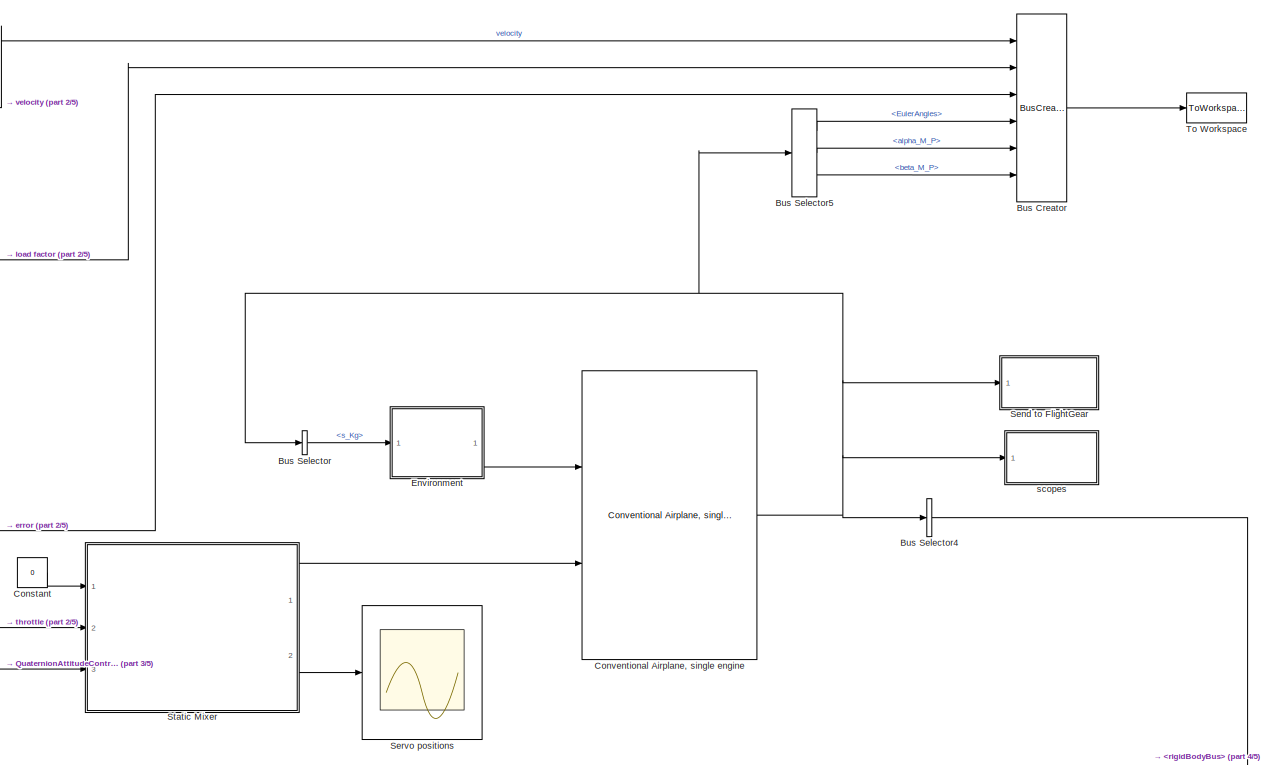
[diagram: root canvas - part 1/5, top right region]
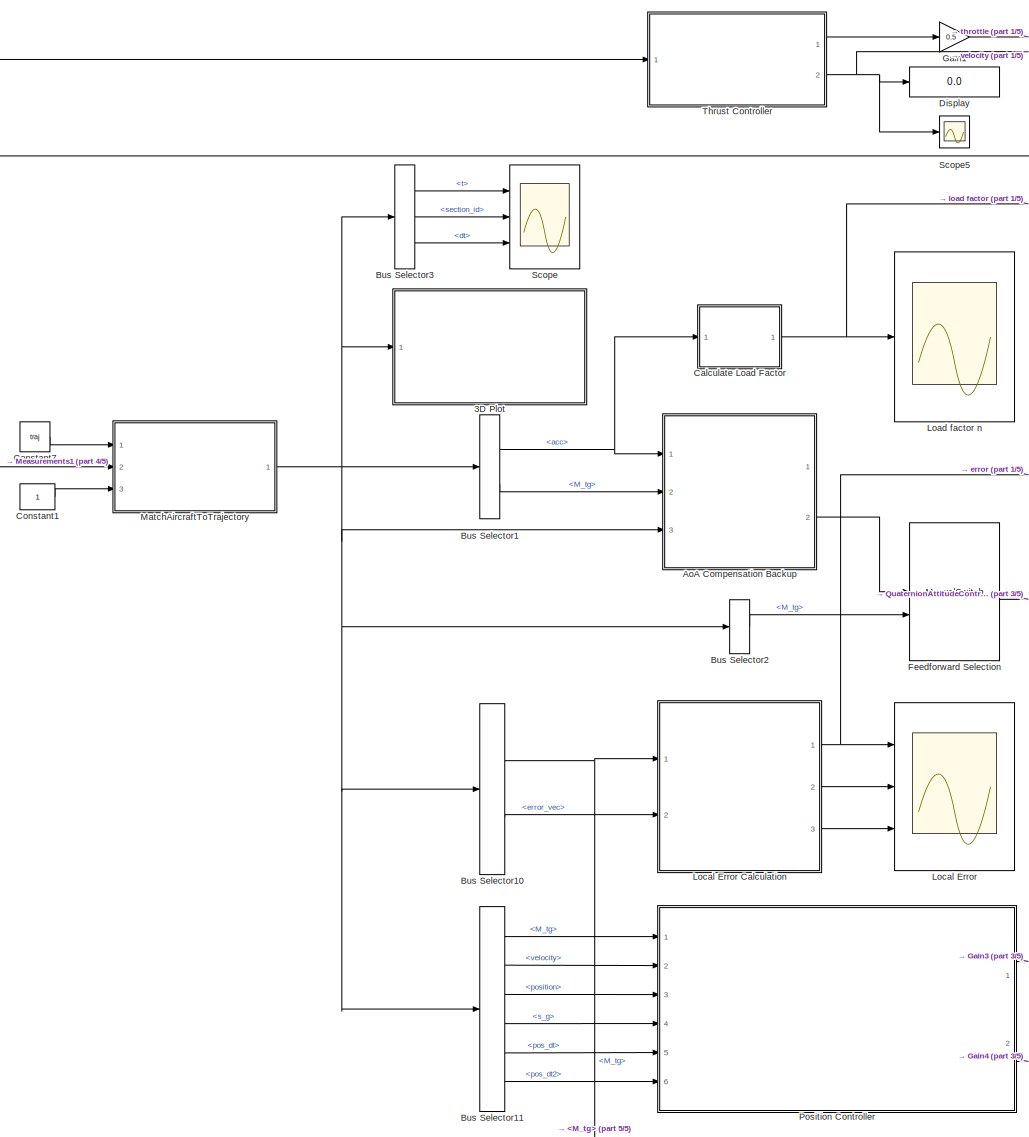
[diagram: root canvas - part 2/5, left side, full height]
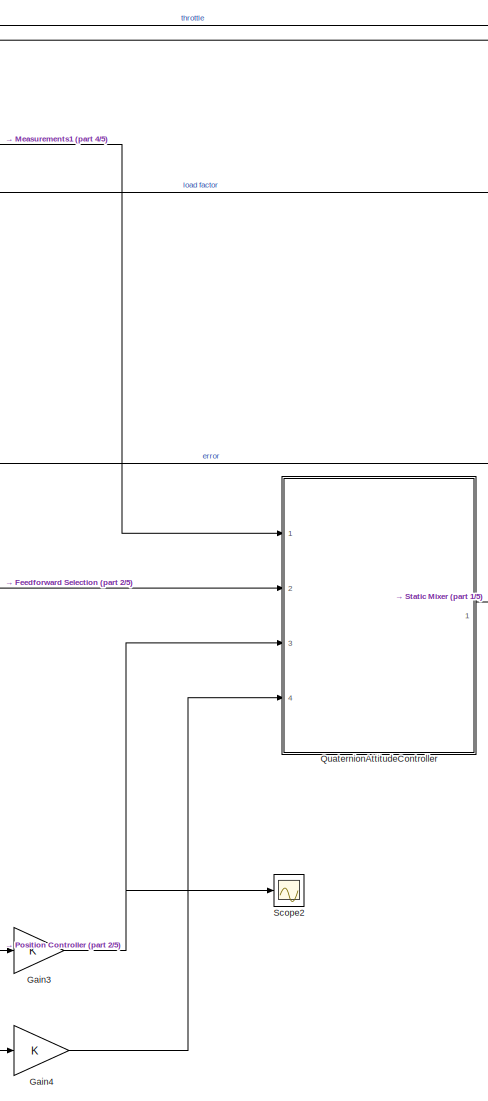
[diagram: root canvas - part 3/5, central region]
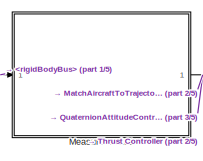
[diagram: root canvas - part 4/5, middle left region]
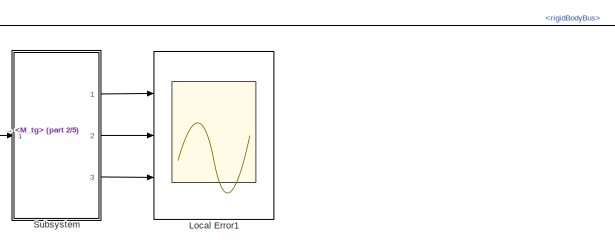
[diagram: root canvas - part 5/5, bottom center region]
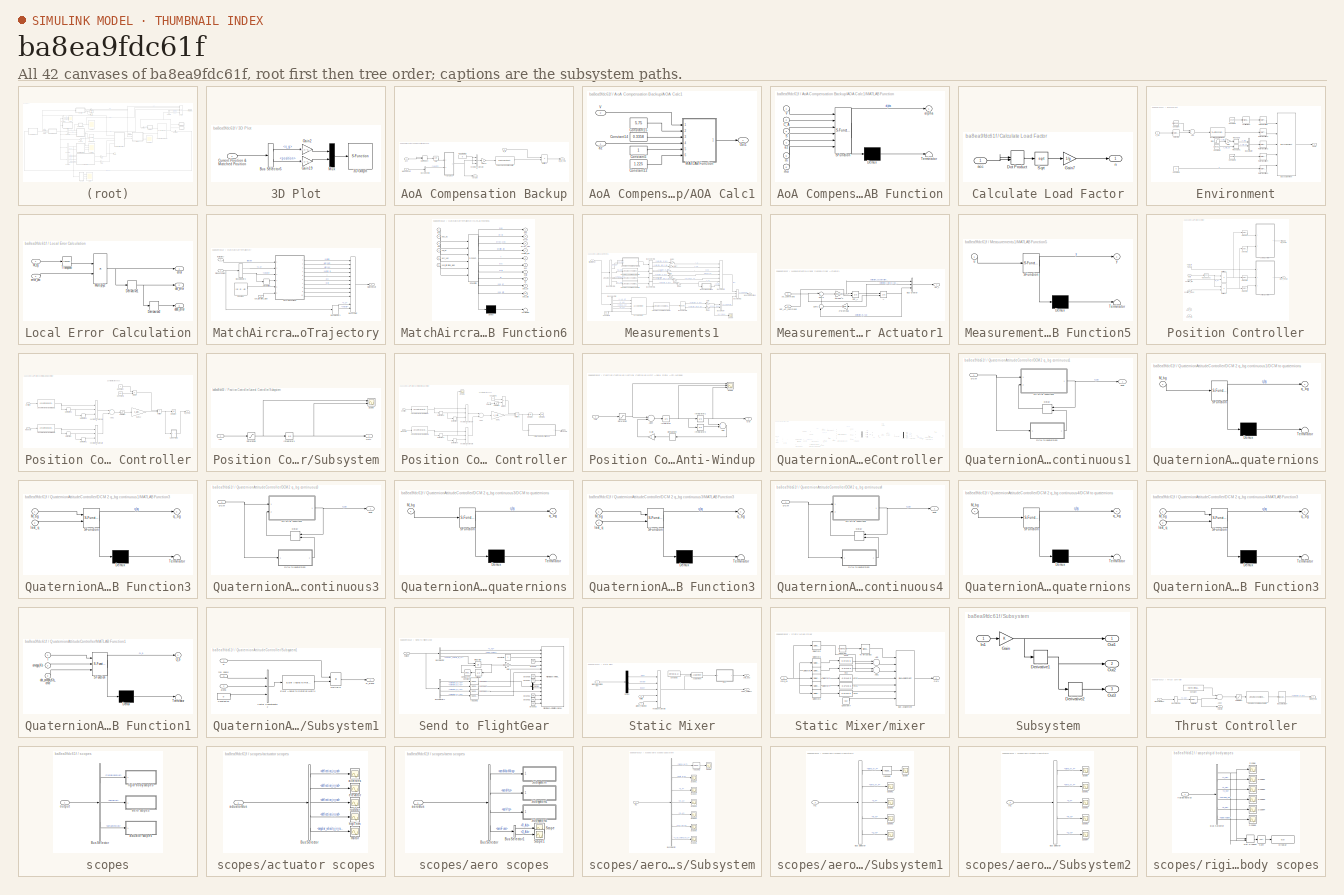
[diagram: thumbnail index - all 42 canvases of the model, root first then tree order]
MODEL slx_ba8ea9fdc61f
KIND model
CONFIG AbsTol = auto
CONFIG EnableMultiTasking = off
CONFIG FixedStep = 0.001
CONFIG MaxStep = auto
CONFIG MinStep = auto
CONFIG RelTol = 1e-3
CONFIG SampleTimeConstraint = Unconstrained
CONFIG Solver = ode4
CONFIG SolverName = ode4
CONFIG StartTime = 0.0
CONFIG StopTime = 30
BLOCK [SubSystem] 3D Plot
  Ports = [1]
  RequestExecContextInheritance = off
BLOCK [S-Function] 3D Plot/3D Graph
  CopyFcn = if exist('sfun3d','file'), sfun3d([],[],[],'CopyBlock'); end
  DeleteFcn = if exist('sfun3d','file'), sfun3d([],[],[],'DeleteBlock'); end
  EnableBusSupport = off
  FunctionName = sfun3d
  LoadFcn = if exist('sfun3d','file'), sfun3d([],[],[],'LoadBlock'); end
  NameChangeFcn = if exist('sfun3d','file'), sfun3d([],[],[],'NameChange'); end
  Parameters = ax,T,np,cp,gd,ls,mk,mx,hd,tb
  Ports = [1]
  SFcnIsStateOwnerBlock = off
  SFunctionDeploymentMode = off
BLOCK [BusSelector] 3D Plot/Bus Selector5
  OutputAsBus = off
  OutputSignals = s_g,position
  Ports = [1, 2]
BLOCK [Inport] 3D Plot/Current Position & Matched Position
  IconDisplay = Port number
BLOCK [Gain] 3D Plot/Gain19
  Gain = [1 1 -1]'
  OutDataTypeStr = Inherit: Inherit via internal rule
  ParamDataTypeStr = Inherit: Inherit via internal rule
  SaturateOnIntegerOverflow = off
BLOCK [Gain] 3D Plot/Gain2
  Gain = [1 1 -1]'
  OutDataTypeStr = Inherit: Inherit via internal rule
  ParamDataTypeStr = Inherit: Inherit via internal rule
  SaturateOnIntegerOverflow = off
BLOCK [Mux] 3D Plot/Mux
  DisplayOption = bar
  Inputs = 2
  Ports = [2, 1]
BLOCK [SubSystem] AoA Compensation Backup
  Ports = [3, 2]
  RequestExecContextInheritance = off
BLOCK [SubSystem] AoA Compensation Backup/AOA Calc1
  Ports = [2, 1]
  RequestExecContextInheritance = off
BLOCK [Constant] AoA Compensation Backup/AOA Calc1/Constant12
  Value = 1.225
BLOCK [Constant] AoA Compensation Backup/AOA Calc1/Constant14
  Value = 0.3358
BLOCK [Constant] AoA Compensation Backup/AOA Calc1/Constant15
  Value = 5.75
BLOCK [Constant] AoA Compensation Backup/AOA Calc1/Constant5
BLOCK [SubSystem] AoA Compensation Backup/AOA Calc1/MATLAB Function
  ErrorFcn = Stateflow.Translate.translate
  PermitHierarchicalResolution = ExplicitOnly
  Ports = [6, 1]
  RequestExecContextInheritance = off
  SFBlockType = MATLAB Function
  TreatAsAtomicUnit = on
BLOCK [Demux] AoA Compensation Backup/AOA Calc1/MATLAB Function/ Demux 
  Outputs = 1
  Ports = [1, 1]
BLOCK [S-Function] AoA Compensation Backup/AOA Calc1/MATLAB Function/ SFunction 
  EnableBusSupport = on
  FunctionName = sf_sfun
  PortCounts = [6 2]
  Ports = [6, 2]
  SFcnIsStateOwnerBlock = off
  SFunctionDeploymentMode = off
  Tag = Stateflow S-Function AirplaneSimModel_AutomaticTrajectory 13
BLOCK [Terminator] AoA Compensation Backup/AOA Calc1/MATLAB Function/ Terminator 
BLOCK [Inport] AoA Compensation Backup/AOA Calc1/MATLAB Function/C_A
  IconDisplay = Port number
  Port = 2
BLOCK [Inport] AoA Compensation Backup/AOA Calc1/MATLAB Function/S
  IconDisplay = Port number
  Port = 3
BLOCK [Inport] AoA Compensation Backup/AOA Calc1/MATLAB Function/V
  IconDisplay = Port number
BLOCK [Outport] AoA Compensation Backup/AOA Calc1/MATLAB Function/alpha
  IconDisplay = Port number
BLOCK [Inport] AoA Compensation Backup/AOA Calc1/MATLAB Function/az
  IconDisplay = Port number
  Port = 4
BLOCK [Inport] AoA Compensation Backup/AOA Calc1/MATLAB Function/m
  IconDisplay = Port number
  Port = 5
BLOCK [Inport] AoA Compensation Backup/AOA Calc1/MATLAB Function/rho
  IconDisplay = Port number
  Port = 6
BLOCK [Outport] AoA Compensation Backup/AOA Calc1/Out1
  IconDisplay = Port number
BLOCK [Inport] AoA Compensation Backup/AOA Calc1/V
  IconDisplay = Port number
  Port = 2
BLOCK [Inport] AoA Compensation Backup/AOA Calc1/az
  IconDisplay = Port number
BLOCK [Outport] AoA Compensation Backup/AoA Soll
  IconDisplay = Port number
BLOCK [BusSelector] AoA Compensation Backup/Bus Selector3
  OutputAsBus = off
  OutputSignals = velocity
  Ports = [1, 1]
BLOCK [Constant] AoA Compensation Backup/Constant16
  Value = 0
BLOCK [DotProduct] AoA Compensation Backup/Dot Product
  OutDataTypeStr = Inherit: Inherit via internal rule
BLOCK [Reference] AoA Compensation Backup/Euler Angles to Rotation Matrix  REF=axes_transformation_lib/Euler Angles to Rotation Matrix  (lib defined in slx_69e2413c78c0)
  Ports = [1, 1]
  SourceBlock = axes_transformation_lib/Euler Angles to Rotation Matrix
  SourceProductName = LADAC
  SourceType = SubSystem
BLOCK [Gain] AoA Compensation Backup/Gain15
  Gain = -1
  OutDataTypeStr = Inherit: Inherit via internal rule
  ParamDataTypeStr = Inherit: Inherit via internal rule
  SaturateOnIntegerOverflow = off
BLOCK [Inport] AoA Compensation Backup/M_tg
  IconDisplay = Port number
  Port = 2
BLOCK [Outport] AoA Compensation Backup/M_tg_cmd
  IconDisplay = Port number
  Port = 2
BLOCK [Inport] AoA Compensation Backup/MatchResult
  IconDisplay = Port number
  Port = 3
BLOCK [Product] AoA Compensation Backup/Multiply1
  InputSameDT = off
  Multiplication = Matrix(*)
  OutDataTypeStr = Inherit: Inherit via internal rule
  Ports = [2, 1]
  RndMeth = Floor
  SaturateOnIntegerOverflow = off
BLOCK [Sqrt] AoA Compensation Backup/Sqrt
BLOCK [Concatenate] AoA Compensation Backup/Vector Concatenate2
  NumInputs = 3
  Ports = [3, 1]
BLOCK [Inport] AoA Compensation Backup/acc
  IconDisplay = Port number
BLOCK [BusCreator] Bus Creator
  DisplayOption = bar
  InheritFromInputs = on
  Inputs = 6
  Ports = [6, 1]
BLOCK [BusSelector] Bus Selector
  OutputAsBus = off
  OutputSignals = rigidBodyBus.s_Kg
  Ports = [1, 1]
BLOCK [BusSelector] Bus Selector1
  OutputAsBus = off
  OutputSignals = acc,M_tg
  Ports = [1, 2]
BLOCK [BusSelector] Bus Selector10
  OutputAsBus = off
  OutputSignals = M_tg,error_vec
  Ports = [1, 2]
BLOCK [BusSelector] Bus Selector11
  OutputAsBus = off
  OutputSignals = M_tg,velocity,position,s_g,pos_dt,pos_dt2
  Ports = [1, 6]
BLOCK [BusSelector] Bus Selector2
  OutputAsBus = off
  OutputSignals = M_tg
  Ports = [1, 1]
BLOCK [BusSelector] Bus Selector3
  OutputAsBus = off
  OutputSignals = t,section_id,dt
  Ports = [1, 3]
BLOCK [BusSelector] Bus Selector4
  OutputAsBus = off
  OutputSignals = rigidBodyBus
  Ports = [1, 1]
BLOCK [BusSelector] Bus Selector5
  OutputAsBus = off
  OutputSignals = rigidBodyBus.EulerAngles,aeroBus.aeroMainWing.aeroAxes.alpha_M_P,aeroBus.aeroMainWing.aeroAxes.beta_M_P
  Ports = [1, 3]
BLOCK [SubSystem] Calculate Load Factor
  Ports = [1, 1]
  RequestExecContextInheritance = off
BLOCK [DotProduct] Calculate Load Factor/Dot Product
  OutDataTypeStr = Inherit: Inherit via internal rule
BLOCK [Gain] Calculate Load Factor/Gain7
  Gain = 1/g
  OutDataTypeStr = Inherit: Inherit via internal rule
  ParamDataTypeStr = Inherit: Inherit via internal rule
  SaturateOnIntegerOverflow = off
BLOCK [Sqrt] Calculate Load Factor/Sqrt
BLOCK [Inport] Calculate Load Factor/acc
  IconDisplay = Port number
BLOCK [Outport] Calculate Load Factor/n
  IconDisplay = Port number
BLOCK [Constant] Constant
  Value = 0
BLOCK [Constant] Constant1
BLOCK [Constant] Constant7
  OutDataTypeStr = Bus: trajectoryBus
  Value = traj
BLOCK [Reference] Conventional Airplane, single engine  REF=conventional_airplane_single_engine_lib/Conventional Airplane,  (lib defined in slx_fd2fac8ad290)
single engine
  Ports = [2, 1]
  SourceBlock = conventional_airplane_single_engine_lib/Conventional Airplane,\nsingle engine
  SourceProductName = LADAC
BLOCK [Display] Display
  Decimation = 1
  Ports = [1]
BLOCK [SubSystem] Environment
  Ports = [1, 1]
  RequestExecContextInheritance = off
BLOCK [Sum] Environment/Add
  InputSameDT = off
  Inputs = +-
  OutDataTypeStr = Inherit: Inherit via internal rule
  Ports = [2, 1]
  SaturateOnIntegerOverflow = off
BLOCK [BusAssignment] Environment/Bus Assignment
  AssignedSignals = atmosphere,wind,g,alt_ground
  Ports = [5, 1]
BLOCK [BusCreator] Environment/Bus Creator
  DisplayOption = bar
  InheritFromInputs = on
  Inputs = 2
  Ports = [2, 1]
BLOCK [Constant] Environment/Constant
  Value = airplane.posRef.alt
BLOCK [Constant] Environment/Constant1
  OutDataTypeStr = Bus: envirBus
  Value = envir
BLOCK [Constant] Environment/Constant2
  Value = zeros(3,1)
BLOCK [Constant] Environment/Constant3
  Value = envir.g
BLOCK [Constant] Environment/Constant4
  Value = 0
BLOCK [Gain] Environment/Gain
  Gain = 0
  OutDataTypeStr = Inherit: Inherit via internal rule
  ParamDataTypeStr = Inherit: Inherit via internal rule
  SaturateOnIntegerOverflow = off
BLOCK [Reference] Environment/ISA Atmosphere Model  REF=atmosphere_lib/ISA Atmosphere Model  (lib defined in slx_398a0eb2fa35)
  Ports = [1, 1]
  SourceBlock = atmosphere_lib/ISA Atmosphere Model
  SourceProductName = LADAC
  SourceType = SubSystem
BLOCK [RateTransition] Environment/Rate Transition
BLOCK [RateTransition] Environment/Rate Transition1
BLOCK [RateTransition] Environment/Rate Transition2
BLOCK [RateTransition] Environment/Rate Transition3
BLOCK [RateTransition] Environment/Rate Transition4
BLOCK [Reshape] Environment/Reshape
  OutputDimensionality = Column vector (2-D)
  Ports = [1, 1]
BLOCK [Reshape] Environment/Reshape1
  OutputDimensionality = Column vector (2-D)
  Ports = [1, 1]
BLOCK [Selector] Environment/Selector1
  IndexOptions = Index vector (dialog)
  Indices = 3
  InputPortWidth = 3
  OutputSizes = 1
  Ports = [1, 1]
BLOCK [Step] Environment/Step
  After = [0;10;0]
  SampleTime = 0
  Time = 3
BLOCK [SignalConversion] Environment/To Virtual Bus
  ConversionOutput = Virtual bus
  OverrideOpt = off
BLOCK [Outport] Environment/envir
  IconDisplay = Port number
BLOCK [Inport] Environment/s_Kg
  IconDisplay = Port number
BLOCK [ManualSwitch] Feedforward Selection
  CurrentSetting = 0
BLOCK [Gain] Gain1
  Gain = 0.5
  OutDataTypeStr = Inherit: Inherit via internal rule
  ParamDataTypeStr = Inherit: Inherit via internal rule
  SaturateOnIntegerOverflow = off
BLOCK [Gain] Gain3
  OutDataTypeStr = Inherit: Inherit via internal rule
  ParamDataTypeStr = Inherit: Inherit via internal rule
  SaturateOnIntegerOverflow = off
BLOCK [Gain] Gain4
  OutDataTypeStr = Inherit: Inherit via internal rule
  ParamDataTypeStr = Inherit: Inherit via internal rule
  SaturateOnIntegerOverflow = off
BLOCK [Scope] Load factor n
  Floating = off
  NumInputPorts = 1
  Ports = [1]
  ScopeSpecificationString = Simulink.scopes.TimeScopeBlockCfg('CurrentConfiguration', extmgr.ConfigurationSet(extmgr.Configuration('Core','General UI',true),extmgr.Configuration('Core','Source UI',true),extmgr.Configuration('Sources','WiredSimulink',true,'DataLoggingVariableName','ScopeData2'),extmgr.Configuration('Visuals','Time Domain',true,'SerializedDisplays',{struct('MinYLimReal','0.42376','MaxYLimReal','3.84847','YLabe...<+1440ch>
BLOCK [Scope] Local Error
  Floating = off
  NumInputPorts = 3
  Ports = [3]
  ScopeSpecificationString = Simulink.scopes.TimeScopeBlockCfg('CurrentConfiguration', extmgr.ConfigurationSet(extmgr.Configuration('Core','General UI',true),extmgr.Configuration('Core','Source UI',true),extmgr.Configuration('Sources','WiredSimulink',true,'DataLoggingVariableName','ScopeData3'),extmgr.Configuration('Visuals','Time Domain',true,'SerializedDisplays',{struct('MinYLimReal','-0.37402','MaxYLimReal','0.30495','YLab...<+2897ch>
BLOCK [SubSystem] Local Error Calculation
  Ports = [2, 3]
  RequestExecContextInheritance = off
BLOCK [Derivative] Local Error Calculation/Derivative1
BLOCK [Derivative] Local Error Calculation/Derivative2
BLOCK [Inport] Local Error Calculation/M_tg
  IconDisplay = Port number
BLOCK [Product] Local Error Calculation/Multiply2
  InputSameDT = off
  Multiplication = Matrix(*)
  OutDataTypeStr = Inherit: Inherit via internal rule
  Ports = [2, 1]
  RndMeth = Floor
  SaturateOnIntegerOverflow = off
BLOCK [Math] Local Error Calculation/Transpose
  Operator = transpose
  Ports = [1, 1]
BLOCK [Outport] Local Error Calculation/ddot_error
  IconDisplay = Port number
  Port = 3
BLOCK [Outport] Local Error Calculation/dot_error
  IconDisplay = Port number
  Port = 2
BLOCK [Outport] Local Error Calculation/error
  IconDisplay = Port number
BLOCK [Inport] Local Error Calculation/error_vec
  IconDisplay = Port number
  Port = 2
BLOCK [Scope] Local Error1
  Floating = off
  NumInputPorts = 3
  Ports = [3]
  ScopeSpecificationString = Simulink.scopes.TimeScopeBlockCfg('CurrentConfiguration', extmgr.ConfigurationSet(extmgr.Configuration('Core','General UI',true),extmgr.Configuration('Core','Source UI',true),extmgr.Configuration('Sources','WiredSimulink',true,'DataLoggingVariableName','ScopeData4'),extmgr.Configuration('Visuals','Time Domain',true,'SerializedDisplays',{struct('MinYLimReal','-1.21066','MaxYLimReal','1.24563','YLab...<+3118ch>
BLOCK [SubSystem] MatchAircraftToTrajectory
  Ports = [3, 1]
  RequestExecContextInheritance = off
BLOCK [BusCreator] MatchAircraftToTrajectory/Bus Creator
  DisplayOption = bar
  InheritFromInputs = on
  Inputs = 13
  Ports = [13, 1]
BLOCK [BusSelector] MatchAircraftToTrajectory/Bus Selector1
  OutputAsBus = off
  OutputSignals = EKF.s_g,EKF.velocity
  Ports = [1, 2]
BLOCK [BusSelector] MatchAircraftToTrajectory/Bus Selector3
  OutputAsBus = off
  OutputSignals = EKF.s_g,EKF.velocity
  Ports = [1, 2]
BLOCK [Constant] MatchAircraftToTrajectory/Constant
  Value = [0; 0; -g]
  VectorParams1D = off
BLOCK [Derivative] MatchAircraftToTrajectory/Derivative
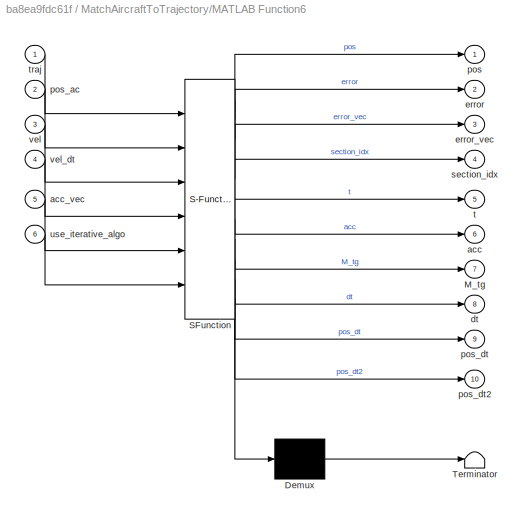
BLOCK [SubSystem] MatchAircraftToTrajectory/MATLAB Function6
  ErrorFcn = Stateflow.Translate.translate
  PermitHierarchicalResolution = ExplicitOnly
  Ports = [6, 10]
  RequestExecContextInheritance = off
  SFBlockType = MATLAB Function
  TreatAsAtomicUnit = on
BLOCK [Demux] MatchAircraftToTrajectory/MATLAB Function6/ Demux 
  Outputs = 1
  Ports = [1, 1]
BLOCK [S-Function] MatchAircraftToTrajectory/MATLAB Function6/ SFunction 
  EnableBusSupport = on
  FunctionName = sf_sfun
  PortCounts = [6 11]
  Ports = [6, 11]
  SFcnIsStateOwnerBlock = off
  SFunctionDeploymentMode = off
  Tag = Stateflow S-Function AirplaneSimModel_AutomaticTrajectory 2
BLOCK [Terminator] MatchAircraftToTrajectory/MATLAB Function6/ Terminator 
BLOCK [Outport] MatchAircraftToTrajectory/MATLAB Function6/M_tg
  IconDisplay = Port number
  Port = 7
BLOCK [Outport] MatchAircraftToTrajectory/MATLAB Function6/acc
  IconDisplay = Port number
  Port = 6
BLOCK [Inport] MatchAircraftToTrajectory/MATLAB Function6/acc_vec
  IconDisplay = Port number
  Port = 5
BLOCK [Outport] MatchAircraftToTrajectory/MATLAB Function6/dt
  IconDisplay = Port number
  Port = 8
BLOCK [Outport] MatchAircraftToTrajectory/MATLAB Function6/error
  IconDisplay = Port number
  Port = 2
BLOCK [Outport] MatchAircraftToTrajectory/MATLAB Function6/error_vec
  IconDisplay = Port number
  Port = 3
BLOCK [Outport] MatchAircraftToTrajectory/MATLAB Function6/pos
  IconDisplay = Port number
BLOCK [Inport] MatchAircraftToTrajectory/MATLAB Function6/pos_ac
  IconDisplay = Port number
  Port = 2
BLOCK [Outport] MatchAircraftToTrajectory/MATLAB Function6/pos_dt
  IconDisplay = Port number
  Port = 9
BLOCK [Outport] MatchAircraftToTrajectory/MATLAB Function6/pos_dt2
  IconDisplay = Port number
  Port = 10
BLOCK [Outport] MatchAircraftToTrajectory/MATLAB Function6/section_idx
  IconDisplay = Port number
  Port = 4
BLOCK [Outport] MatchAircraftToTrajectory/MATLAB Function6/t
  IconDisplay = Port number
  Port = 5
BLOCK [Inport] MatchAircraftToTrajectory/MATLAB Function6/traj
  IconDisplay = Port number
BLOCK [Inport] MatchAircraftToTrajectory/MATLAB Function6/use_iterative_algo
  IconDisplay = Port number
  Port = 6
BLOCK [Inport] MatchAircraftToTrajectory/MATLAB Function6/vel
  IconDisplay = Port number
  Port = 3
BLOCK [Inport] MatchAircraftToTrajectory/MATLAB Function6/vel_dt
  IconDisplay = Port number
  Port = 4
BLOCK [Outport] MatchAircraftToTrajectory/MatchResult
  IconDisplay = Port number
BLOCK [Inport] MatchAircraftToTrajectory/measurement
  IconDisplay = Port number
  Port = 2
BLOCK [Inport] MatchAircraftToTrajectory/trajectory
  IconDisplay = Port number
BLOCK [Inport] MatchAircraftToTrajectory/use_iterative_algo
  IconDisplay = Port number
  Port = 3
BLOCK [SubSystem] Measurements1
  Ports = [1, 1]
  RequestExecContextInheritance = off
BLOCK [BusCreator] Measurements1/Bus Creator
  DisplayOption = bar
  InheritFromInputs = on
  Inputs = 2
  Ports = [2, 1]
BLOCK [BusCreator] Measurements1/Bus Creator1
  DisplayOption = bar
  InheritFromInputs = on
  Inputs = 7
  Ports = [7, 1]
BLOCK [BusCreator] Measurements1/Bus Creator2
  DisplayOption = bar
  InheritFromInputs = on
  Inputs = 3
  Ports = [3, 1]
BLOCK [BusSelector] Measurements1/Bus Selector1
  OutputAsBus = off
  OutputSignals = deflection_in_rad,deflection_rate_in_rad_per_s
  Ports = [1, 2]
BLOCK [BusSelector] Measurements1/Bus Selector2
  OutputAsBus = off
  OutputSignals = deflection_in_rad
  Ports = [1, 1]
BLOCK [BusSelector] Measurements1/Bus Selector3
  OutputAsBus = off
  OutputSignals = s_Kg,V_Kg,M_bg,omega_Kb,V_Kb
  Ports = [1, 5]
BLOCK [BusSelector] Measurements1/Bus Selector4
  OutputAsBus = off
  OutputSignals = deflection_in_rad,deflection_rate_in_rad_per_s
  Ports = [1, 2]
BLOCK [BusSelector] Measurements1/Bus Selector5
  OutputAsBus = off
  OutputSignals = deflection_in_rad
  Ports = [1, 1]
BLOCK [BusSelector] Measurements1/Bus Selector8
  OutputAsBus = off
  OutputSignals = V_Kb_dt,V_Kb,omega_Kb,M_bg
  Ports = [1, 4]
BLOCK [BusSelector] Measurements1/Bus Selector9
  OutputAsBus = off
  OutputSignals = deflection_in_rad,deflection_rate_in_rad_per_s
  Ports = [1, 2]
BLOCK [Constant] Measurements1/Constant2
  Value = 9.81
BLOCK [Gain] Measurements1/Gain
  OutDataTypeStr = Inherit: Inherit via internal rule
  ParamDataTypeStr = Inherit: Inherit via internal rule
  SaturateOnIntegerOverflow = off
BLOCK [Gain] Measurements1/Gain1
  OutDataTypeStr = Inherit: Inherit via internal rule
  ParamDataTypeStr = Inherit: Inherit via internal rule
  SaturateOnIntegerOverflow = off
BLOCK [Gain] Measurements1/Gain2
  OutDataTypeStr = Inherit: Inherit via internal rule
  ParamDataTypeStr = Inherit: Inherit via internal rule
  SaturateOnIntegerOverflow = off
BLOCK [Gain] Measurements1/Gain3
  OutDataTypeStr = Inherit: Inherit via internal rule
  ParamDataTypeStr = Inherit: Inherit via internal rule
  SaturateOnIntegerOverflow = off
BLOCK [Gain] Measurements1/Gain4
  OutDataTypeStr = Inherit: Inherit via internal rule
  ParamDataTypeStr = Inherit: Inherit via internal rule
  SaturateOnIntegerOverflow = off
BLOCK [Gain] Measurements1/Gain5
  OutDataTypeStr = Inherit: Inherit via internal rule
  ParamDataTypeStr = Inherit: Inherit via internal rule
  SaturateOnIntegerOverflow = off
BLOCK [Gain] Measurements1/Gain6
  OutDataTypeStr = Inherit: Inherit via internal rule
  ParamDataTypeStr = Inherit: Inherit via internal rule
  SaturateOnIntegerOverflow = off
BLOCK [Gain] Measurements1/Gain7
  OutDataTypeStr = Inherit: Inherit via internal rule
  ParamDataTypeStr = Inherit: Inherit via internal rule
  SaturateOnIntegerOverflow = off
BLOCK [Reference] Measurements1/Linear Second-Order Actuator  REF=actuators_lib/Linear Second-Order Actuator  (lib defined in slx_c2decc952d1f)
  Ports = [1, 1]
  SourceBlock = actuators_lib/Linear Second-Order Actuator
  SourceProductName = LADAC
BLOCK [SubSystem] Measurements1/Linear Second-Order Actuator1
  Ports = [2, 1]
  RequestExecContextInheritance = off
BLOCK [Gain] Measurements1/Linear Second-Order Actuator1/2*d//omega
  Gain = 2*d/omega
  OutDataTypeStr = Inherit: Inherit via internal rule
  ParamDataTypeStr = Inherit: Inherit via internal rule
  SaturateOnIntegerOverflow = off
BLOCK [Integrator] Measurements1/Linear Second-Order Actuator1/A
  ContinuousStateAttributes = 'A'
  InitialCondition = A_0
  InitialConditionSource = external
  Ports = [2, 1]
BLOCK [Inport] Measurements1/Linear Second-Order Actuator1/Act_command
  IconDisplay = Port number
BLOCK [Outport] Measurements1/Linear Second-Order Actuator1/Act_y
  IconDisplay = Port number
BLOCK [BusCreator] Measurements1/Linear Second-Order Actuator1/Bus Creator
  DisplayOption = bar
  InheritFromInputs = on
  Inputs = 3
  Ports = [3, 1]
BLOCK [Sum] Measurements1/Linear Second-Order Actuator1/Sum2
  IconShape = round
  InputSameDT = off
  Inputs = |+-
  OutDataTypeStr = Inherit: Inherit via internal rule
  Ports = [2, 1]
  SaturateOnIntegerOverflow = off
BLOCK [Sum] Measurements1/Linear Second-Order Actuator1/Sum3
  IconShape = round
  InputSameDT = off
  Inputs = |++
  OutDataTypeStr = Inherit: Inherit via internal rule
  Ports = [2, 1]
  SaturateOnIntegerOverflow = off
BLOCK [Integrator] Measurements1/Linear Second-Order Actuator1/dot_A
  ContinuousStateAttributes = 'dot_A'
  InitialCondition = dot_A_0
  InitialConditionSource = external
  Ports = [2, 1]
BLOCK [Inport] Measurements1/Linear Second-Order Actuator1/dot_Act_command
  IconDisplay = Port number
  Port = 2
BLOCK [Gain] Measurements1/Linear Second-Order Actuator1/omega^2
  Gain = omega^2
  OutDataTypeStr = Inherit: Inherit via internal rule
  ParamDataTypeStr = Inherit: Inherit via internal rule
  SaturateOnIntegerOverflow = off
BLOCK [Reference] Measurements1/Linear Second-Order Actuator2  REF=actuators_lib/Linear Second-Order Actuator  (lib defined in slx_c2decc952d1f)
  Ports = [1, 1]
  SourceBlock = actuators_lib/Linear Second-Order Actuator
  SourceProductName = LADAC
BLOCK [Reference] Measurements1/Linear Second-Order Actuator3  REF=actuators_lib/Linear Second-Order Actuator  (lib defined in slx_c2decc952d1f)
  Ports = [1, 1]
  SourceBlock = actuators_lib/Linear Second-Order Actuator
  SourceProductName = LADAC
BLOCK [Reference] Measurements1/Linear Second-Order Actuator4  REF=actuators_lib/Linear Second-Order Actuator  (lib defined in slx_c2decc952d1f)
  Ports = [1, 1]
  SourceBlock = actuators_lib/Linear Second-Order Actuator
  SourceProductName = LADAC
BLOCK [SubSystem] Measurements1/MATLAB Function5
  ErrorFcn = Stateflow.Translate.translate
  PermitHierarchicalResolution = ExplicitOnly
  Ports = [1, 1]
  RequestExecContextInheritance = off
  SFBlockType = MATLAB Function
  TreatAsAtomicUnit = on
BLOCK [Demux] Measurements1/MATLAB Function5/ Demux 
  Outputs = 1
  Ports = [1, 1]
BLOCK [S-Function] Measurements1/MATLAB Function5/ SFunction 
  EnableBusSupport = on
  FunctionName = sf_sfun
  PortCounts = [1 2]
  Ports = [1, 2]
  SFcnIsStateOwnerBlock = off
  SFunctionDeploymentMode = off
  Tag = Stateflow S-Function AirplaneSimModel_AutomaticTrajectory 15
BLOCK [Terminator] Measurements1/MATLAB Function5/ Terminator 
BLOCK [Inport] Measurements1/MATLAB Function5/u
  IconDisplay = Port number
BLOCK [Outport] Measurements1/MATLAB Function5/y
  IconDisplay = Port number
BLOCK [Outport] Measurements1/MeasurementBus
  IconDisplay = Port number
BLOCK [Scope] Measurements1/Scope
  Floating = off
  NumInputPorts = 1
  Ports = [1]
  ScopeSpecificationString = Simulink.scopes.TimeScopeBlockCfg('CurrentConfiguration', extmgr.ConfigurationSet(extmgr.Configuration('Core','General UI',true),extmgr.Configuration('Core','Source UI',true),extmgr.Configuration('Sources','WiredSimulink',true,'DataLoggingVariableName','ScopeData1'),extmgr.Configuration('Visuals','Time Domain',true,'SerializedDisplays',{struct('MinYLimReal','-12.42868','MaxYLimReal','-4.82722','YL...<+1450ch>
BLOCK [Reference] Measurements1/accelerometer  REF=sensors_lib/accelerometer  (lib defined in mdl_052e9be48c24, mdl_88e42053cf8c, +1 more)
  Ports = [5, 1]
  SourceBlock = sensors_lib/accelerometer
  SourceType = SubSystem
BLOCK [Inport] Measurements1/ridgidBody
  IconDisplay = Port number
BLOCK [SubSystem] Position Controller
  Ports = [6, 2]
  RequestExecContextInheritance = off
BLOCK [SubSystem] Position Controller/Lateral Controller
  Ports = [2, 1]
  RequestExecContextInheritance = off
BLOCK [Sum] Position Controller/Lateral Controller/Add2
  InputSameDT = off
  Inputs = +-
  OutDataTypeStr = Inherit: Inherit via internal rule
  Ports = [2, 1]
  SaturateOnIntegerOverflow = off
BLOCK [Constant] Position Controller/Lateral Controller/Constant
  Value = -1
BLOCK [Constant] Position Controller/Lateral Controller/Constant1
  Value = 9.81
BLOCK [Derivative] Position Controller/Lateral Controller/Derivative
BLOCK [Derivative] Position Controller/Lateral Controller/Derivative1
BLOCK [Derivative] Position Controller/Lateral Controller/Derivative2
BLOCK [Derivative] Position Controller/Lateral Controller/Derivative3
BLOCK [Product] Position Controller/Lateral Controller/Divide
  InputSameDT = off
  Inputs = */
  OutDataTypeStr = Inherit: Inherit via internal rule
  Ports = [2, 1]
  RndMeth = Floor
  SaturateOnIntegerOverflow = off
BLOCK [Gain] Position Controller/Lateral Controller/Gain12
  Gain = K_lateral
  Multiplication = Matrix(K*u)
  OutDataTypeStr = Inherit: Inherit via internal rule
  ParamDataTypeStr = Inherit: Inherit via internal rule
  SaturateOnIntegerOverflow = off
BLOCK [Integrator] Position Controller/Lateral Controller/Integrator
  Ports = [1, 1]
BLOCK [Reference] Position Controller/Lateral Controller/Linear n-th order actuator (SISO)1  REF=actuators_lib/Linear n-th order actuator (SISO)  (lib defined in slx_c2decc952d1f)
  Ports = [1, 1]
  SourceBlock = actuators_lib/Linear n-th order actuator (SISO)
  SourceProductName = LADAC
BLOCK [Reference] Position Controller/Lateral Controller/Linear n-th order actuator (SISO)2  REF=actuators_lib/Linear n-th order actuator (SISO)  (lib defined in slx_c2decc952d1f)
  Ports = [1, 1]
  SourceBlock = actuators_lib/Linear n-th order actuator (SISO)
  SourceProductName = LADAC
BLOCK [Inport] Position Controller/Lateral Controller/Measure
  IconDisplay = Port number
  Port = 2
BLOCK [Product] Position Controller/Lateral Controller/Multiply
  InputSameDT = off
  OutDataTypeStr = Inherit: Inherit via internal rule
  Ports = [2, 1]
  RndMeth = Floor
  SaturateOnIntegerOverflow = off
BLOCK [Saturate] Position Controller/Lateral Controller/Saturation
  InputPortMap = u0
  LowerLimit = -[20 inf inf]
  Ports = [1, 1]
  UpperLimit = [20 inf inf]
BLOCK [SubSystem] Position Controller/Lateral Controller/Subsystem
  Ports = [1, 1]
  RequestExecContextInheritance = off
BLOCK [Inport] Position Controller/Lateral Controller/Subsystem/In1
  IconDisplay = Port number
BLOCK [Integrator] Position Controller/Lateral Controller/Subsystem/Integrator1
  LimitOutput = on
  LowerSaturationLimit = -45/57.3
  Ports = [1, 1]
  UpperSaturationLimit = 45/57.3
BLOCK [Outport] Position Controller/Lateral Controller/Subsystem/Out1
  IconDisplay = Port number
BLOCK [Saturate] Position Controller/Lateral Controller/Subsystem/Saturation
  InputPortMap = u0
  LowerLimit = -5
  Ports = [1, 1]
  UpperLimit = 5
BLOCK [Scope] Position Controller/Lateral Controller/Subsystem/Scope
  Floating = off
  NumInputPorts = 2
  Ports = [2]
  ScopeSpecificationString = Simulink.scopes.TimeScopeBlockCfg('CurrentConfiguration', extmgr.ConfigurationSet(extmgr.Configuration('Core','General UI',true),extmgr.Configuration('Core','Source UI',true),extmgr.Configuration('Sources','WiredSimulink',true,'DataLoggingVariableName','ScopeData1'),extmgr.Configuration('Visuals','Time Domain',true,'SerializedDisplays',{struct('MinYLimReal','-1.24008','MaxYLimReal','5.69334','YLab...<+1523ch>
BLOCK [Concatenate] Position Controller/Lateral Controller/Vector Concatenate1
  NumInputs = 3
  Ports = [3, 1]
BLOCK [Concatenate] Position Controller/Lateral Controller/Vector Concatenate2
  NumInputs = 3
  Ports = [3, 1]
BLOCK [Inport] Position Controller/Lateral Controller/position
  IconDisplay = Port number
  PortDimensions = 1
BLOCK [Outport] Position Controller/Lateral Controller/roll_angle
  IconDisplay = Port number
  PortDimensions = 1
BLOCK [Inport] Position Controller/M_tg
  IconDisplay = Port number
BLOCK [Product] Position Controller/Multiply3
  InputSameDT = off
  Multiplication = Matrix(*)
  OutDataTypeStr = Inherit: Inherit via internal rule
  Ports = [2, 1]
  RndMeth = Floor
  SaturateOnIntegerOverflow = off
BLOCK [Product] Position Controller/Multiply4
  InputSameDT = off
  Multiplication = Matrix(*)
  OutDataTypeStr = Inherit: Inherit via internal rule
  Ports = [2, 1]
  RndMeth = Floor
  SaturateOnIntegerOverflow = off
BLOCK [Selector] Position Controller/Selector
  IndexOptions = Index vector (dialog)
  Indices = 2
  InputPortWidth = 3
  OutputSizes = 1
  Ports = [1, 1]
BLOCK [Selector] Position Controller/Selector1
  IndexOptions = Index vector (dialog)
  Indices = 3
  InputPortWidth = 3
  OutputSizes = 1
  Ports = [1, 1]
BLOCK [Selector] Position Controller/Selector2
  IndexOptions = Index vector (dialog)
  Indices = 2
  InputPortWidth = 3
  OutputSizes = 1
  Ports = [1, 1]
BLOCK [Selector] Position Controller/Selector4
  IndexOptions = Index vector (dialog)
  Indices = 3
  InputPortWidth = 3
  OutputSizes = 1
  Ports = [1, 1]
BLOCK [Math] Position Controller/Transpose2
  Operator = transpose
  Ports = [1, 1]
BLOCK [SubSystem] Position Controller/Vertical Controller
  Ports = [3, 1]
  RequestExecContextInheritance = off
BLOCK [Sum] Position Controller/Vertical Controller/Add1
  InputSameDT = off
  Inputs = +-
  OutDataTypeStr = Inherit: Inherit via internal rule
  Ports = [2, 1]
  SaturateOnIntegerOverflow = off
BLOCK [Constant] Position Controller/Vertical Controller/Constant1
BLOCK [Derivative] Position Controller/Vertical Controller/Derivative4
BLOCK [Derivative] Position Controller/Vertical Controller/Derivative5
BLOCK [Derivative] Position Controller/Vertical Controller/Derivative6
BLOCK [Derivative] Position Controller/Vertical Controller/Derivative7
BLOCK [Product] Position Controller/Vertical Controller/Divide1
  InputSameDT = off
  Inputs = */
  OutDataTypeStr = Inherit: Inherit via internal rule
  Ports = [2, 1]
  RndMeth = Floor
  SaturateOnIntegerOverflow = off
BLOCK [Gain] Position Controller/Vertical Controller/Gain1
  Gain = K_vertical
  Multiplication = Matrix(K*u)
  OutDataTypeStr = Inherit: Inherit via internal rule
  ParamDataTypeStr = Inherit: Inherit via internal rule
  SaturateOnIntegerOverflow = off
BLOCK [Integrator] Position Controller/Vertical Controller/Integrator
  Ports = [1, 1]
BLOCK [Integrator] Position Controller/Vertical Controller/Integrator1
  Ports = [1, 1]
BLOCK [SubSystem] Position Controller/Vertical Controller/Limit Angle, Rate, Anti-Windup
  Ports = [1, 1]
  RequestExecContextInheritance = off
BLOCK [Sum] Position Controller/Vertical Controller/Limit Angle, Rate, Anti-Windup/Add
  InputSameDT = off
  OutDataTypeStr = Inherit: Inherit via internal rule
  Ports = [2, 1]
  SaturateOnIntegerOverflow = off
BLOCK [Sum] Position Controller/Vertical Controller/Limit Angle, Rate, Anti-Windup/Add4
  InputSameDT = off
  Inputs = +-
  OutDataTypeStr = Inherit: Inherit via internal rule
  Ports = [2, 1]
  SaturateOnIntegerOverflow = off
BLOCK [Derivative] Position Controller/Vertical Controller/Limit Angle, Rate, Anti-Windup/Derivative4
BLOCK [Gain] Position Controller/Vertical Controller/Limit Angle, Rate, Anti-Windup/Gain
  OutDataTypeStr = Inherit: Inherit via internal rule
  ParamDataTypeStr = Inherit: Inherit via internal rule
  SaturateOnIntegerOverflow = off
BLOCK [Inport] Position Controller/Vertical Controller/Limit Angle, Rate, Anti-Windup/In1
  IconDisplay = Port number
BLOCK [Integrator] Position Controller/Vertical Controller/Limit Angle, Rate, Anti-Windup/Integrator
  LimitOutput = on
  LowerSaturationLimit = -0.8
  Ports = [1, 1]
  UpperSaturationLimit = 0.8
BLOCK [Integrator] Position Controller/Vertical Controller/Limit Angle, Rate, Anti-Windup/Integrator1
  LimitOutput = on
  LowerSaturationLimit = -45/57.3
  Ports = [1, 1]
  UpperSaturationLimit = 45/57.3
BLOCK [Integrator] Position Controller/Vertical Controller/Limit Angle, Rate, Anti-Windup/Integrator2
  Ports = [1, 1]
BLOCK [Outport] Position Controller/Vertical Controller/Limit Angle, Rate, Anti-Windup/Out
  IconDisplay = Port number
BLOCK [Saturate] Position Controller/Vertical Controller/Limit Angle, Rate, Anti-Windup/Saturation
  InputPortMap = u0
  LowerLimit = -5
  Ports = [1, 1]
  UpperLimit = 5
BLOCK [Scope] Position Controller/Vertical Controller/Limit Angle, Rate, Anti-Windup/Scope
  Floating = off
  NumInputPorts = 3
  Ports = [3]
  ScopeSpecificationString = Simulink.scopes.TimeScopeBlockCfg('CurrentConfiguration', extmgr.ConfigurationSet(extmgr.Configuration('Core','General UI',true),extmgr.Configuration('Core','Source UI',true),extmgr.Configuration('Sources','WiredSimulink',true,'DataLoggingVariableName','ScopeData1'),extmgr.Configuration('Visuals','Time Domain',true,'SerializedDisplays',{struct('MinYLimReal','-0.2403','MaxYLimReal','0.41386','YLabe...<+1535ch>
BLOCK [Reference] Position Controller/Vertical Controller/Linear n-th order actuator (SISO)  REF=actuators_lib/Linear n-th order actuator (SISO)  (lib defined in slx_c2decc952d1f)
  Ports = [1, 1]
  SourceBlock = actuators_lib/Linear n-th order actuator (SISO)
  SourceProductName = LADAC
BLOCK [Reference] Position Controller/Vertical Controller/Linear n-th order actuator (SISO)1  REF=actuators_lib/Linear n-th order actuator (SISO)  (lib defined in slx_c2decc952d1f)
  Ports = [1, 1]
  SourceBlock = actuators_lib/Linear n-th order actuator (SISO)
  SourceProductName = LADAC
BLOCK [Inport] Position Controller/Vertical Controller/Measure
  IconDisplay = Port number
  Port = 3
BLOCK [Product] Position Controller/Vertical Controller/Multiply1
  InputSameDT = off
  OutDataTypeStr = Inherit: Inherit via internal rule
  Ports = [2, 1]
  RndMeth = Floor
  SaturateOnIntegerOverflow = off
BLOCK [Saturate] Position Controller/Vertical Controller/Saturation
  InputPortMap = u0
  LowerLimit = 5
  Ports = [1, 1]
  UpperLimit = 30
BLOCK [Scope] Position Controller/Vertical Controller/Scope
  Floating = off
  NumInputPorts = 1
  Ports = [1]
  ScopeSpecificationString = Simulink.scopes.TimeScopeBlockCfg('CurrentConfiguration', extmgr.ConfigurationSet(extmgr.Configuration('Core','General UI',true),extmgr.Configuration('Core','Source UI',true),extmgr.Configuration('Sources','WiredSimulink',true,'DataLoggingVariableName','ScopeData2'),extmgr.Configuration('Visuals','Time Domain',true,'SerializedDisplays',{struct('MinYLimReal','-7.10062','MaxYLimReal','7.06936','YLab...<+1399ch>
BLOCK [Concatenate] Position Controller/Vertical Controller/Vector Concatenate3
  NumInputs = 3
  Ports = [3, 1]
BLOCK [Concatenate] Position Controller/Vertical Controller/Vector Concatenate4
  NumInputs = 3
  Ports = [3, 1]
BLOCK [Outport] Position Controller/Vertical Controller/pitch angle
  IconDisplay = Port number
  PortDimensions = 1
BLOCK [Inport] Position Controller/Vertical Controller/position
  IconDisplay = Port number
  Port = 2
  PortDimensions = 1
BLOCK [Inport] Position Controller/Vertical Controller/velocity
  IconDisplay = Port number
  PortDimensions = 1
BLOCK [Outport] Position Controller/pitch_angle
  IconDisplay = Port number
BLOCK [Inport] Position Controller/pos_dt
  IconDisplay = Port number
  Port = 5
BLOCK [Inport] Position Controller/pos_dt2
  IconDisplay = Port number
  Port = 6
BLOCK [Inport] Position Controller/position_meas
  IconDisplay = Port number
  Port = 4
BLOCK [Inport] Position Controller/position_traj
  IconDisplay = Port number
  Port = 3
BLOCK [Outport] Position Controller/roll_angle
  IconDisplay = Port number
  Port = 2
BLOCK [Inport] Position Controller/velocity
  IconDisplay = Port number
  Port = 2
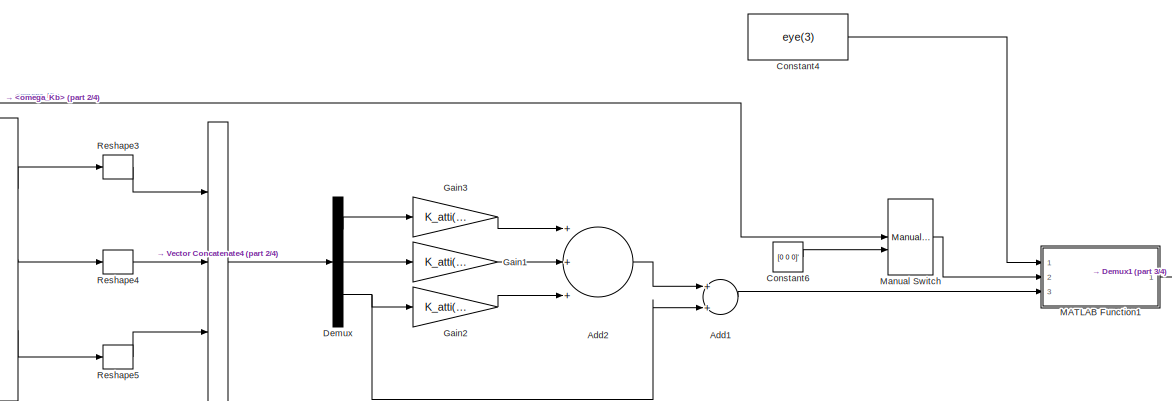
[diagram: QuaternionAttitudeController - part 1/4, central region]
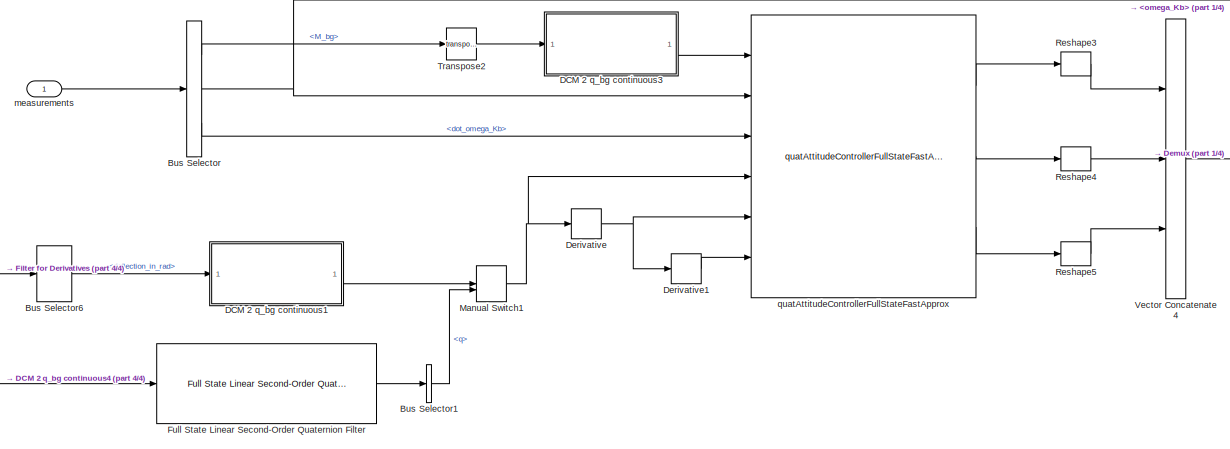
[diagram: QuaternionAttitudeController - part 2/4, left side, full height]
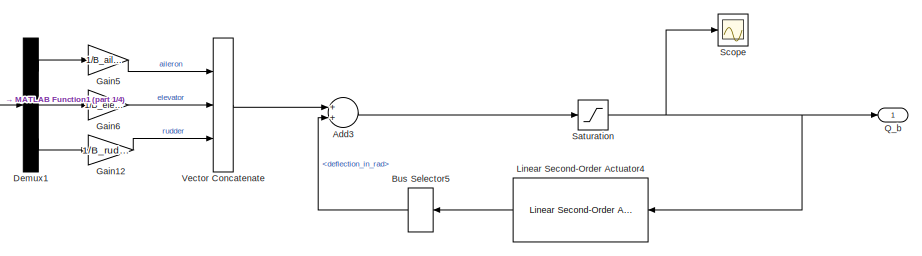
[diagram: QuaternionAttitudeController - part 3/4, middle right region]
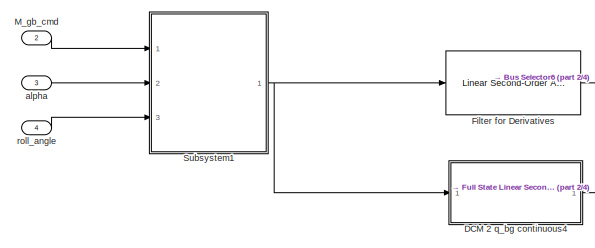
[diagram: QuaternionAttitudeController - part 4/4, bottom left region]
BLOCK [SubSystem] QuaternionAttitudeController
  Ports = [4, 1]
  RequestExecContextInheritance = off
BLOCK [Sum] QuaternionAttitudeController/Add1
  InputSameDT = off
  OutDataTypeStr = Inherit: Inherit via internal rule
  Ports = [2, 1]
  SaturateOnIntegerOverflow = off
BLOCK [Sum] QuaternionAttitudeController/Add2
  InputSameDT = off
  Inputs = +++
  OutDataTypeStr = Inherit: Inherit via internal rule
  Ports = [3, 1]
  SaturateOnIntegerOverflow = off
BLOCK [Sum] QuaternionAttitudeController/Add3
  InputSameDT = off
  OutDataTypeStr = Inherit: Inherit via internal rule
  Ports = [2, 1]
  SaturateOnIntegerOverflow = off
BLOCK [BusSelector] QuaternionAttitudeController/Bus Selector
  OutputAsBus = off
  OutputSignals = EKF.M_bg,EKF.omega_Kb,EKF.dot_omega_Kb
  Ports = [1, 3]
BLOCK [BusSelector] QuaternionAttitudeController/Bus Selector1
  OutputAsBus = off
  OutputSignals = q
  Ports = [1, 1]
BLOCK [BusSelector] QuaternionAttitudeController/Bus Selector5
  OutputAsBus = off
  OutputSignals = deflection_in_rad
  Ports = [1, 1]
BLOCK [BusSelector] QuaternionAttitudeController/Bus Selector6
  OutputAsBus = off
  OutputSignals = deflection_in_rad
  Ports = [1, 1]
BLOCK [Constant] QuaternionAttitudeController/Constant4
  Value = eye(3)
  VectorParams1D = off
BLOCK [Constant] QuaternionAttitudeController/Constant6
  Value = [0 0 0]'
  VectorParams1D = off
BLOCK [SubSystem] QuaternionAttitudeController/DCM 2 q_bg continuous1
  Ports = [1, 1]
  RequestExecContextInheritance = off
BLOCK [Inport] QuaternionAttitudeController/DCM 2 q_bg continuous1/DCM
  IconDisplay = Port number
BLOCK [SubSystem] QuaternionAttitudeController/DCM 2 q_bg continuous1/DCM to quaternions
  ErrorFcn = Stateflow.Translate.translate
  PermitHierarchicalResolution = ExplicitOnly
  Ports = [1, 1]
  RequestExecContextInheritance = off
  SFBlockType = MATLAB Function
  TreatAsAtomicUnit = on
BLOCK [Demux] QuaternionAttitudeController/DCM 2 q_bg continuous1/DCM to quaternions/ Demux 
  Outputs = 1
  Ports = [1, 1]
BLOCK [S-Function] QuaternionAttitudeController/DCM 2 q_bg continuous1/DCM to quaternions/ SFunction 
  EnableBusSupport = on
  FunctionName = sf_sfun
  PortCounts = [1 2]
  Ports = [1, 2]
  SFcnIsStateOwnerBlock = off
  SFunctionDeploymentMode = off
  Tag = Stateflow S-Function AirplaneSimModel_AutomaticTrajectory 5
BLOCK [Terminator] QuaternionAttitudeController/DCM 2 q_bg continuous1/DCM to quaternions/ Terminator 
BLOCK [Inport] QuaternionAttitudeController/DCM 2 q_bg continuous1/DCM to quaternions/M_bg
  IconDisplay = Port number
BLOCK [Outport] QuaternionAttitudeController/DCM 2 q_bg continuous1/DCM to quaternions/q_bg
  IconDisplay = Port number
BLOCK [Delay] QuaternionAttitudeController/DCM 2 q_bg continuous1/Delay
  DelayLength = 1
  InitialConditionSource = Input port
  InputPortMap = u0,p4
  Ports = [2, 1]
BLOCK [SubSystem] QuaternionAttitudeController/DCM 2 q_bg continuous1/MATLAB Function3
  ErrorFcn = Stateflow.Translate.translate
  PermitHierarchicalResolution = ExplicitOnly
  Ports = [2, 1]
  RequestExecContextInheritance = off
  SFBlockType = MATLAB Function
  TreatAsAtomicUnit = on
BLOCK [Demux] QuaternionAttitudeController/DCM 2 q_bg continuous1/MATLAB Function3/ Demux 
  Outputs = 1
  Ports = [1, 1]
BLOCK [S-Function] QuaternionAttitudeController/DCM 2 q_bg continuous1/MATLAB Function3/ SFunction 
  EnableBusSupport = on
  FunctionName = sf_sfun
  PortCounts = [2 2]
  Ports = [2, 2]
  SFcnIsStateOwnerBlock = off
  SFunctionDeploymentMode = off
  Tag = Stateflow S-Function AirplaneSimModel_AutomaticTrajectory 6
BLOCK [Terminator] QuaternionAttitudeController/DCM 2 q_bg continuous1/MATLAB Function3/ Terminator 
BLOCK [Inport] QuaternionAttitudeController/DCM 2 q_bg continuous1/MATLAB Function3/M_bg
  IconDisplay = Port number
BLOCK [Inport] QuaternionAttitudeController/DCM 2 q_bg continuous1/MATLAB Function3/last_q
  IconDisplay = Port number
  Port = 2
BLOCK [Outport] QuaternionAttitudeController/DCM 2 q_bg continuous1/MATLAB Function3/q_bg
  IconDisplay = Port number
BLOCK [Outport] QuaternionAttitudeController/DCM 2 q_bg continuous1/quat
  IconDisplay = Port number
BLOCK [SubSystem] QuaternionAttitudeController/DCM 2 q_bg continuous3
  Ports = [1, 1]
  RequestExecContextInheritance = off
BLOCK [Inport] QuaternionAttitudeController/DCM 2 q_bg continuous3/DCM
  IconDisplay = Port number
BLOCK [SubSystem] QuaternionAttitudeController/DCM 2 q_bg continuous3/DCM to quaternions
  ErrorFcn = Stateflow.Translate.translate
  PermitHierarchicalResolution = ExplicitOnly
  Ports = [1, 1]
  RequestExecContextInheritance = off
  SFBlockType = MATLAB Function
  TreatAsAtomicUnit = on
BLOCK [Demux] QuaternionAttitudeController/DCM 2 q_bg continuous3/DCM to quaternions/ Demux 
  Outputs = 1
  Ports = [1, 1]
BLOCK [S-Function] QuaternionAttitudeController/DCM 2 q_bg continuous3/DCM to quaternions/ SFunction 
  EnableBusSupport = on
  FunctionName = sf_sfun
  PortCounts = [1 2]
  Ports = [1, 2]
  SFcnIsStateOwnerBlock = off
  SFunctionDeploymentMode = off
  Tag = Stateflow S-Function AirplaneSimModel_AutomaticTrajectory 7
BLOCK [Terminator] QuaternionAttitudeController/DCM 2 q_bg continuous3/DCM to quaternions/ Terminator 
BLOCK [Inport] QuaternionAttitudeController/DCM 2 q_bg continuous3/DCM to quaternions/M_bg
  IconDisplay = Port number
BLOCK [Outport] QuaternionAttitudeController/DCM 2 q_bg continuous3/DCM to quaternions/q_bg
  IconDisplay = Port number
BLOCK [Delay] QuaternionAttitudeController/DCM 2 q_bg continuous3/Delay
  DelayLength = 1
  InitialConditionSource = Input port
  InputPortMap = u0,p4
  Ports = [2, 1]
BLOCK [SubSystem] QuaternionAttitudeController/DCM 2 q_bg continuous3/MATLAB Function3
  ErrorFcn = Stateflow.Translate.translate
  PermitHierarchicalResolution = ExplicitOnly
  Ports = [2, 1]
  RequestExecContextInheritance = off
  SFBlockType = MATLAB Function
  TreatAsAtomicUnit = on
BLOCK [Demux] QuaternionAttitudeController/DCM 2 q_bg continuous3/MATLAB Function3/ Demux 
  Outputs = 1
  Ports = [1, 1]
BLOCK [S-Function] QuaternionAttitudeController/DCM 2 q_bg continuous3/MATLAB Function3/ SFunction 
  EnableBusSupport = on
  FunctionName = sf_sfun
  PortCounts = [2 2]
  Ports = [2, 2]
  SFcnIsStateOwnerBlock = off
  SFunctionDeploymentMode = off
  Tag = Stateflow S-Function AirplaneSimModel_AutomaticTrajectory 8
BLOCK [Terminator] QuaternionAttitudeController/DCM 2 q_bg continuous3/MATLAB Function3/ Terminator 
BLOCK [Inport] QuaternionAttitudeController/DCM 2 q_bg continuous3/MATLAB Function3/M_bg
  IconDisplay = Port number
BLOCK [Inport] QuaternionAttitudeController/DCM 2 q_bg continuous3/MATLAB Function3/last_q
  IconDisplay = Port number
  Port = 2
BLOCK [Outport] QuaternionAttitudeController/DCM 2 q_bg continuous3/MATLAB Function3/q_bg
  IconDisplay = Port number
BLOCK [Outport] QuaternionAttitudeController/DCM 2 q_bg continuous3/quat
  IconDisplay = Port number
BLOCK [SubSystem] QuaternionAttitudeController/DCM 2 q_bg continuous4
  Ports = [1, 1]
  RequestExecContextInheritance = off
BLOCK [Inport] QuaternionAttitudeController/DCM 2 q_bg continuous4/DCM
  IconDisplay = Port number
BLOCK [SubSystem] QuaternionAttitudeController/DCM 2 q_bg continuous4/DCM to quaternions
  ErrorFcn = Stateflow.Translate.translate
  PermitHierarchicalResolution = ExplicitOnly
  Ports = [1, 1]
  RequestExecContextInheritance = off
  SFBlockType = MATLAB Function
  TreatAsAtomicUnit = on
BLOCK [Demux] QuaternionAttitudeController/DCM 2 q_bg continuous4/DCM to quaternions/ Demux 
  Outputs = 1
  Ports = [1, 1]
BLOCK [S-Function] QuaternionAttitudeController/DCM 2 q_bg continuous4/DCM to quaternions/ SFunction 
  EnableBusSupport = on
  FunctionName = sf_sfun
  PortCounts = [1 2]
  Ports = [1, 2]
  SFcnIsStateOwnerBlock = off
  SFunctionDeploymentMode = off
  Tag = Stateflow S-Function AirplaneSimModel_AutomaticTrajectory 1
BLOCK [Terminator] QuaternionAttitudeController/DCM 2 q_bg continuous4/DCM to quaternions/ Terminator 
BLOCK [Inport] QuaternionAttitudeController/DCM 2 q_bg continuous4/DCM to quaternions/M_bg
  IconDisplay = Port number
BLOCK [Outport] QuaternionAttitudeController/DCM 2 q_bg continuous4/DCM to quaternions/q_bg
  IconDisplay = Port number
BLOCK [Delay] QuaternionAttitudeController/DCM 2 q_bg continuous4/Delay
  DelayLength = 1
  InitialConditionSource = Input port
  InputPortMap = u0,p4
  Ports = [2, 1]
BLOCK [SubSystem] QuaternionAttitudeController/DCM 2 q_bg continuous4/MATLAB Function3
  ErrorFcn = Stateflow.Translate.translate
  PermitHierarchicalResolution = ExplicitOnly
  Ports = [2, 1]
  RequestExecContextInheritance = off
  SFBlockType = MATLAB Function
  TreatAsAtomicUnit = on
BLOCK [Demux] QuaternionAttitudeController/DCM 2 q_bg continuous4/MATLAB Function3/ Demux 
  Outputs = 1
  Ports = [1, 1]
BLOCK [S-Function] QuaternionAttitudeController/DCM 2 q_bg continuous4/MATLAB Function3/ SFunction 
  EnableBusSupport = on
  FunctionName = sf_sfun
  PortCounts = [2 2]
  Ports = [2, 2]
  SFcnIsStateOwnerBlock = off
  SFunctionDeploymentMode = off
  Tag = Stateflow S-Function AirplaneSimModel_AutomaticTrajectory 10
BLOCK [Terminator] QuaternionAttitudeController/DCM 2 q_bg continuous4/MATLAB Function3/ Terminator 
BLOCK [Inport] QuaternionAttitudeController/DCM 2 q_bg continuous4/MATLAB Function3/M_bg
  IconDisplay = Port number
BLOCK [Inport] QuaternionAttitudeController/DCM 2 q_bg continuous4/MATLAB Function3/last_q
  IconDisplay = Port number
  Port = 2
BLOCK [Outport] QuaternionAttitudeController/DCM 2 q_bg continuous4/MATLAB Function3/q_bg
  IconDisplay = Port number
BLOCK [Outport] QuaternionAttitudeController/DCM 2 q_bg continuous4/quat
  IconDisplay = Port number
BLOCK [Demux] QuaternionAttitudeController/Demux
  DisplayOption = bar
  Outputs = 3
  Ports = [1, 3]
BLOCK [Demux] QuaternionAttitudeController/Demux1
  DisplayOption = bar
  Outputs = 3
  Ports = [1, 3]
BLOCK [Derivative] QuaternionAttitudeController/Derivative
BLOCK [Derivative] QuaternionAttitudeController/Derivative1
BLOCK [Reference] QuaternionAttitudeController/Filter for Derivatives  REF=actuators_lib/Linear Second-Order Actuator  (lib defined in slx_c2decc952d1f)
  Ports = [1, 1]
  SourceBlock = actuators_lib/Linear Second-Order Actuator
  SourceProductName = LADAC
BLOCK [Reference] QuaternionAttitudeController/Full State Linear Second-Order Quaternion Filter  REF=quatAttitudeController_lib/Full State Linear Second-Order Quaternion Filter
  Ports = [1, 1]
  SourceBlock = quatAttitudeController_lib/Full State Linear Second-Order Quaternion Filter
  SourceProductName = LADAC
BLOCK [Gain] QuaternionAttitudeController/Gain1
  Gain = K_atti(2)
  OutDataTypeStr = Inherit: Inherit via internal rule
  ParamDataTypeStr = Inherit: Inherit via internal rule
  SaturateOnIntegerOverflow = off
BLOCK [Gain] QuaternionAttitudeController/Gain12
  Gain = 1/B_rudder_r_14ms*1
  OutDataTypeStr = Inherit: Inherit via internal rule
  ParamDataTypeStr = Inherit: Inherit via internal rule
  SaturateOnIntegerOverflow = off
BLOCK [Gain] QuaternionAttitudeController/Gain2
  Gain = K_atti(3)
  OutDataTypeStr = Inherit: Inherit via internal rule
  ParamDataTypeStr = Inherit: Inherit via internal rule
  SaturateOnIntegerOverflow = off
BLOCK [Gain] QuaternionAttitudeController/Gain3
  Gain = K_atti(1)
  OutDataTypeStr = Inherit: Inherit via internal rule
  ParamDataTypeStr = Inherit: Inherit via internal rule
  SaturateOnIntegerOverflow = off
BLOCK [Gain] QuaternionAttitudeController/Gain5
  Gain = 1/B_aileron_p_14ms
  OutDataTypeStr = Inherit: Inherit via internal rule
  ParamDataTypeStr = Inherit: Inherit via internal rule
  SaturateOnIntegerOverflow = off
BLOCK [Gain] QuaternionAttitudeController/Gain6
  Gain = 1/B_elevator_q_14ms
  OutDataTypeStr = Inherit: Inherit via internal rule
  ParamDataTypeStr = Inherit: Inherit via internal rule
  SaturateOnIntegerOverflow = off
BLOCK [Reference] QuaternionAttitudeController/Linear Second-Order Actuator4  REF=actuators_lib/Linear Second-Order Actuator  (lib defined in slx_c2decc952d1f)
  Ports = [1, 1]
  SourceBlock = actuators_lib/Linear Second-Order Actuator
  SourceProductName = LADAC
BLOCK [SubSystem] QuaternionAttitudeController/MATLAB Function1
  ErrorFcn = Stateflow.Translate.translate
  PermitHierarchicalResolution = ExplicitOnly
  Ports = [3, 1]
  RequestExecContextInheritance = off
  SFBlockType = MATLAB Function
  TreatAsAtomicUnit = on
BLOCK [Demux] QuaternionAttitudeController/MATLAB Function1/ Demux 
  Outputs = 1
  Ports = [1, 1]
BLOCK [S-Function] QuaternionAttitudeController/MATLAB Function1/ SFunction 
  EnableBusSupport = on
  FunctionName = sf_sfun
  PortCounts = [3 2]
  Ports = [3, 2]
  SFcnIsStateOwnerBlock = off
  SFunctionDeploymentMode = off
  Tag = Stateflow S-Function AirplaneSimModel_AutomaticTrajectory 34
BLOCK [Terminator] QuaternionAttitudeController/MATLAB Function1/ Terminator 
BLOCK [Inport] QuaternionAttitudeController/MATLAB Function1/I
  IconDisplay = Port number
BLOCK [Outport] QuaternionAttitudeController/MATLAB Function1/Q_b
  IconDisplay = Port number
BLOCK [Inport] QuaternionAttitudeController/MATLAB Function1/dot_omega_Kb_cmd
  IconDisplay = Port number
  Port = 3
BLOCK [Inport] QuaternionAttitudeController/MATLAB Function1/omega_Kb
  IconDisplay = Port number
  Port = 2
BLOCK [Inport] QuaternionAttitudeController/M_gb_cmd
  IconDisplay = Port number
  Port = 2
BLOCK [ManualSwitch] QuaternionAttitudeController/Manual Switch
BLOCK [ManualSwitch] QuaternionAttitudeController/Manual Switch1
BLOCK [Outport] QuaternionAttitudeController/Q_b
  IconDisplay = Port number
BLOCK [Reshape] QuaternionAttitudeController/Reshape3
  OutputDimensionality = Column vector (2-D)
  Ports = [1, 1]
BLOCK [Reshape] QuaternionAttitudeController/Reshape4
  OutputDimensionality = Column vector (2-D)
  Ports = [1, 1]
BLOCK [Reshape] QuaternionAttitudeController/Reshape5
  OutputDimensionality = Column vector (2-D)
  Ports = [1, 1]
BLOCK [Saturate] QuaternionAttitudeController/Saturation
  InputPortMap = u0
  LowerLimit = -1
  Ports = [1, 1]
  UpperLimit = 1
BLOCK [Scope] QuaternionAttitudeController/Scope
  Floating = off
  NumInputPorts = 1
  Ports = [1]
  ScopeSpecificationString = Simulink.scopes.TimeScopeBlockCfg('CurrentConfiguration', extmgr.ConfigurationSet(extmgr.Configuration('Core','General UI',true),extmgr.Configuration('Core','Source UI',true),extmgr.Configuration('Sources','WiredSimulink',true,'DataLoggingVariableName','ScopeData1'),extmgr.Configuration('Visuals','Time Domain',true,'SerializedDisplays',{struct('MinYLimReal','-1.25','MaxYLimReal','1.25','YLabelReal...<+1432ch>
BLOCK [SubSystem] QuaternionAttitudeController/Subsystem1
  Ports = [3, 1]
  RequestExecContextInheritance = off
BLOCK [Constant] QuaternionAttitudeController/Subsystem1/Constant16
  Value = 0
BLOCK [Reference] QuaternionAttitudeController/Subsystem1/Euler Angles to Rotation Matrix  REF=axes_transformation_lib/Euler Angles to Rotation Matrix  (lib defined in slx_69e2413c78c0)
  Ports = [1, 1]
  SourceBlock = axes_transformation_lib/Euler Angles to Rotation Matrix
  SourceProductName = LADAC
  SourceType = SubSystem
BLOCK [Product] QuaternionAttitudeController/Subsystem1/Multiply2
  InputSameDT = off
  Multiplication = Matrix(*)
  OutDataTypeStr = Inherit: Inherit via internal rule
  Ports = [2, 1]
  RndMeth = Floor
  SaturateOnIntegerOverflow = off
BLOCK [Inport] QuaternionAttitudeController/Subsystem1/R
  IconDisplay = Port number
BLOCK [Outport] QuaternionAttitudeController/Subsystem1/R_alpha
  IconDisplay = Port number
BLOCK [Concatenate] QuaternionAttitudeController/Subsystem1/Vector Concatenate2
  NumInputs = 3
  Ports = [3, 1]
BLOCK [Inport] QuaternionAttitudeController/Subsystem1/alpha
  IconDisplay = Port number
  Port = 2
BLOCK [Inport] QuaternionAttitudeController/Subsystem1/roll angle
  IconDisplay = Port number
  Port = 3
BLOCK [Math] QuaternionAttitudeController/Transpose2
  Operator = transpose
  Ports = [1, 1]
BLOCK [Concatenate] QuaternionAttitudeController/Vector Concatenate
  NumInputs = 3
  Ports = [3, 1]
BLOCK [Concatenate] QuaternionAttitudeController/Vector Concatenate4
  NumInputs = 3
  Ports = [3, 1]
BLOCK [Inport] QuaternionAttitudeController/alpha
  IconDisplay = Port number
  Port = 3
BLOCK [Inport] QuaternionAttitudeController/measurements
  IconDisplay = Port number
BLOCK [Reference] QuaternionAttitudeController/quatAttitudeControllerFullStateFastApprox  REF=quatAttitudeController_lib/quatAttitudeControllerFullStateFastApprox
  Ports = [6, 3]
  SourceBlock = quatAttitudeController_lib/quatAttitudeControllerFullStateFastApprox
  SourceProductName = LADAC
  SourceType = SubSystem
BLOCK [Inport] QuaternionAttitudeController/roll_angle
  IconDisplay = Port number
  Port = 4
BLOCK [Scope] Scope
  Floating = off
  NumInputPorts = 3
  Ports = [3]
  ScopeSpecificationString = Simulink.scopes.TimeScopeBlockCfg('CurrentConfiguration', extmgr.ConfigurationSet(extmgr.Configuration('Core','General UI',true),extmgr.Configuration('Core','Source UI',true),extmgr.Configuration('Sources','WiredSimulink',true,'DataLoggingVariableName','ScopeData1'),extmgr.Configuration('Visuals','Time Domain',true,'SerializedDisplays',{struct('MinYLimReal','0.9','MaxYLimReal','1.1','YLabelReal','...<+2010ch>
BLOCK [Scope] Scope2
  Floating = off
  NumInputPorts = 1
  Ports = [1]
  ScopeSpecificationString = Simulink.scopes.TimeScopeBlockCfg('CurrentConfiguration', extmgr.ConfigurationSet(extmgr.Configuration('Core','General UI',true),extmgr.Configuration('Core','Source UI',true),extmgr.Configuration('Sources','WiredSimulink',true,'DataLoggingVariableName','ScopeData3'),extmgr.Configuration('Visuals','Time Domain',true,'SerializedDisplays',{struct('MinYLimReal','-0.4363','MaxYLimReal','0.4363','YLabel...<+1393ch>
BLOCK [Scope] Scope5
  Floating = off
  NumInputPorts = 1
  Ports = [1]
  ScopeSpecificationString = Simulink.scopes.TimeScopeBlockCfg('CurrentConfiguration', extmgr.ConfigurationSet(extmgr.Configuration('Core','General UI',true),extmgr.Configuration('Core','Source UI',true),extmgr.Configuration('Sources','WiredSimulink',true,'DataLoggingVariableName','ScopeData2'),extmgr.Configuration('Visuals','Time Domain',true,'SerializedDisplays',{struct('MinYLimReal','12.74217','MaxYLimReal','25.06434','YLa...<+1428ch>
BLOCK [SubSystem] Send to FlightGear
  Ports = [1]
  RequestExecContextInheritance = off
BLOCK [BusSelector] Send to FlightGear/Bus Selector
  OutputAsBus = off
  OutputSignals = rigidBodyBus.s_Kg,rigidBodyBus.EulerAngles,actuatorBus.motorBus.angular_velocity_in_rad_per_s
  Ports = [1, 3]
BLOCK [BusSelector] Send to FlightGear/Bus Selector1
  OutputAsBus = off
  OutputSignals = actuatorBus.aileronsBus.deflection_in_rad,actuatorBus.elevatorBus.deflection_in_rad,actuatorBus.rudderBus.deflection_in_rad,actuatorBus.htpTrimBus.deflection_in_rad
  Ports = [1, 4]
BLOCK [Reference] Send to FlightGear/Compare To Constant  REF=simulink/Logic and Bit
Operations/Compare
To Constant
  Ports = [1, 1]
  SourceBlock = simulink/Logic and Bit\nOperations/Compare\nTo Constant
  SourceProductBaseCode = SL
  SourceProductName = Simulink
  SourceType = Compare To Constant
BLOCK [Constant] Send to FlightGear/Constant9
BLOCK [Demux] Send to FlightGear/Demux
  DisplayOption = bar
  Outputs = 2
  Ports = [1, 2]
BLOCK [Reference] Send to FlightGear/Flight Gear Animation (plane)  REF=flightgear_visualization_lib/Flight Gear Animation (plane)  (lib defined in slx_722f04e3a3fc)
  Ports = [15]
  SourceBlock = flightgear_visualization_lib/Flight Gear Animation (plane)
  SourceProductName = LADAC
BLOCK [Gain] Send to FlightGear/Gain
  Gain = rad2deg([1;0;0;0])
  OutDataTypeStr = Inherit: Inherit via internal rule
  ParamDataTypeStr = Inherit: Inherit via internal rule
  SaturateOnIntegerOverflow = off
BLOCK [Ground] Send to FlightGear/Ground
BLOCK [Ground] Send to FlightGear/Ground1
BLOCK [Ground] Send to FlightGear/Ground2
BLOCK [Ground] Send to FlightGear/Ground3
BLOCK [Ground] Send to FlightGear/Ground6
BLOCK [Ground] Send to FlightGear/Ground7
BLOCK [Integrator] Send to FlightGear/Integrator
  ExternalReset = rising
  Ports = [2, 1]
BLOCK [UnitDelay] Send to FlightGear/Unit Delay
  InputProcessing = Elements as channels (sample based)
  SampleTime = -1
BLOCK [Inport] Send to FlightGear/output
  IconDisplay = Port number
BLOCK [Reference] Send to FlightGear/rad2deg  REF=unit_conversions_lib/rad2deg  (lib defined in slx_ae2855d4d91e)
  Ports = [1, 1]
  SourceBlock = unit_conversions_lib/rad2deg
  SourceProductName = LADAC
BLOCK [Reference] Send to FlightGear/rad2deg1  REF=unit_conversions_lib/rad2deg  (lib defined in slx_ae2855d4d91e)
  Ports = [1, 1]
  SourceBlock = unit_conversions_lib/rad2deg
  SourceProductName = LADAC
BLOCK [Reference] Send to FlightGear/rad2deg2  REF=unit_conversions_lib/rad2deg  (lib defined in slx_ae2855d4d91e)
  Ports = [1, 1]
  SourceBlock = unit_conversions_lib/rad2deg
  SourceProductName = LADAC
BLOCK [Reference] Send to FlightGear/rad2deg3  REF=unit_conversions_lib/rad2deg  (lib defined in slx_ae2855d4d91e)
  Ports = [1, 1]
  SourceBlock = unit_conversions_lib/rad2deg
  SourceProductName = LADAC
BLOCK [Scope] Servo positions
  Floating = off
  NumInputPorts = 1
  Ports = [1]
  ScopeSpecificationString = Simulink.scopes.TimeScopeBlockCfg('CurrentConfiguration', extmgr.ConfigurationSet(extmgr.Configuration('Core','General UI',true),extmgr.Configuration('Core','Source UI',true),extmgr.Configuration('Sources','WiredSimulink',true,'DataLoggingVariableName','ScopeData4'),extmgr.Configuration('Visuals','Time Domain',true,'SerializedDisplays',{struct('MinYLimReal','-1.20158','MaxYLimReal','0.81421','YLab...<+1636ch>
BLOCK [SubSystem] Static Mixer
  Ports = [3, 2]
  RequestExecContextInheritance = off
BLOCK [Assignment] Static Mixer/Assignment
  DiagnosticForDimensions = Warning
  IndexOptions = Index vector (dialog)
  Indices = [1,2,3,4,5]
  OutputSizes = 1
  Ports = [2, 1]
BLOCK [Constant] Static Mixer/Constant3
  Value = zeros(8,1)
  VectorParams1D = off
BLOCK [Demux] Static Mixer/Demux
  DisplayOption = bar
  Outputs = 3
  Ports = [1, 3]
BLOCK [Outport] Static Mixer/Servo_Out [-1 to 1]
  IconDisplay = Port number
  Port = 2
BLOCK [Concatenate] Static Mixer/Vector Concatenate
  NumInputs = 5
  Ports = [5, 1]
BLOCK [Inport] Static Mixer/aileron,elevator,rudder
  IconDisplay = Port number
  Port = 3
BLOCK [Inport] Static Mixer/aileron_collective
  IconDisplay = Port number
BLOCK [Outport] Static Mixer/cmd_bus
  IconDisplay = Port number
BLOCK [SubSystem] Static Mixer/mixer
  Ports = [1, 1]
  RequestExecContextInheritance = off
BLOCK [Sum] Static Mixer/mixer/Add
  InputSameDT = off
  OutDataTypeStr = Inherit: Inherit via internal rule
  Ports = [2, 1]
  SaturateOnIntegerOverflow = off
BLOCK [Sum] Static Mixer/mixer/Add1
  InputSameDT = off
  OutDataTypeStr = Inherit: Inherit via internal rule
  Ports = [2, 1]
  SaturateOnIntegerOverflow = off
BLOCK [BusAssignment] Static Mixer/mixer/Bus Assignment
  AssignedSignals = aileron_left,aileron_right,elevator,rudder,throttle,htp_trim
  Ports = [7, 1]
BLOCK [Constant] Static Mixer/mixer/Constant
  OutDataTypeStr = Bus: cmdBus
  Value = airplane.cmd
BLOCK [Constant] Static Mixer/mixer/Constant7
  Value = 0.50
BLOCK [Fcn] Static Mixer/mixer/Fcn
  Expr = -0.5*u+0.5
BLOCK [Fcn] Static Mixer/mixer/Fcn1
  Expr = -0.5*u+0.5
BLOCK [Fcn] Static Mixer/mixer/Fcn2
  Expr = -0.5*u+0.5
BLOCK [Fcn] Static Mixer/mixer/Fcn3
  Expr = 0.5*u+0.5
BLOCK [Fcn] Static Mixer/mixer/Fcn4
  Expr = 0.5*u+0.5
BLOCK [Outport] Static Mixer/mixer/Out1
  IconDisplay = Port number
BLOCK [Selector] Static Mixer/mixer/Selector1
  IndexOptions = Index vector (dialog)
  Indices = 1
  InputPortWidth = 8
  OutputSizes = 1
  Ports = [1, 1]
BLOCK [Selector] Static Mixer/mixer/Selector2
  IndexOptions = Index vector (dialog)
  Indices = 2
  InputPortWidth = 8
  OutputSizes = 1
  Ports = [1, 1]
BLOCK [Selector] Static Mixer/mixer/Selector3
  IndexOptions = Index vector (dialog)
  Indices = 1
  InputPortWidth = 8
  OutputSizes = 1
  Ports = [1, 1]
BLOCK [Selector] Static Mixer/mixer/Selector4
  IndexOptions = Index vector (dialog)
  Indices = 3
  InputPortWidth = 8
  OutputSizes = 1
  Ports = [1, 1]
BLOCK [Selector] Static Mixer/mixer/Selector5
  IndexOptions = Index vector (dialog)
  Indices = 4
  InputPortWidth = 8
  OutputSizes = 1
  Ports = [1, 1]
BLOCK [Selector] Static Mixer/mixer/Selector6
  IndexOptions = Index vector (dialog)
  Indices = 5
  InputPortWidth = 8
  OutputSizes = 1
  Ports = [1, 1]
BLOCK [SignalConversion] Static Mixer/mixer/To Virtual Bus
  ConversionOutput = Virtual bus
  OverrideOpt = off
BLOCK [Inport] Static Mixer/mixer/cmd_01
  IconDisplay = Port number
BLOCK [Inport] Static Mixer/throttle
  IconDisplay = Port number
  Port = 2
BLOCK [SubSystem] Subsystem
  Ports = [1, 3]
  RequestExecContextInheritance = off
BLOCK [Derivative] Subsystem/Derivative1
BLOCK [Derivative] Subsystem/Derivative2
BLOCK [Gain] Subsystem/Gain
  OutDataTypeStr = Inherit: Inherit via internal rule
  ParamDataTypeStr = Inherit: Inherit via internal rule
  SaturateOnIntegerOverflow = off
BLOCK [Inport] Subsystem/In1
  IconDisplay = Port number
BLOCK [Outport] Subsystem/Out1
  IconDisplay = Port number
BLOCK [Outport] Subsystem/Out2
  IconDisplay = Port number
  Port = 2
BLOCK [Outport] Subsystem/Out3
  IconDisplay = Port number
  Port = 3
BLOCK [SubSystem] Thrust Controller
  Ports = [1, 2]
  RequestExecContextInheritance = off
BLOCK [Sum] Thrust Controller/Add2
  InputSameDT = off
  Inputs = +-
  OutDataTypeStr = Inherit: Inherit via internal rule
  Ports = [2, 1]
  SaturateOnIntegerOverflow = off
BLOCK [BusSelector] Thrust Controller/Bus Selector14
  OutputAsBus = off
  OutputSignals = deflection_in_rad
  Ports = [1, 1]
BLOCK [BusSelector] Thrust Controller/Bus Selector4
  OutputAsBus = off
  OutputSignals = EKF.V_Kb
  Ports = [1, 1]
BLOCK [Constant] Thrust Controller/Constant
  Value = norm(inital_vel_vec)*1
BLOCK [Reference] Thrust Controller/Linear Second-Order Actuator6  REF=actuators_lib/Linear Second-Order Actuator  (lib defined in slx_c2decc952d1f)
  Ports = [1, 1]
  SourceBlock = actuators_lib/Linear Second-Order Actuator
  SourceProductName = LADAC
BLOCK [Saturate] Thrust Controller/Saturation3
  InputPortMap = u0
  LowerLimit = 0
  Ports = [1, 1]
  UpperLimit = 10
BLOCK [Selector] Thrust Controller/Selector
  IndexOptions = Index vector (dialog)
  Indices = 1
  InputPortWidth = 3
  OutputSizes = 1
  Ports = [1, 1]
BLOCK [Outport] Thrust Controller/Velocity
  IconDisplay = Port number
  Port = 2
BLOCK [Inport] Thrust Controller/measurement
  IconDisplay = Port number
BLOCK [Outport] Thrust Controller/thrust_cmd
  IconDisplay = Port number
BLOCK [ToWorkspace] To Workspace
  FixptAsFi = on
  MaxDataPoints = inf
  Ports = [1]
  SampleTime = -1
  Save2DSignal = 3-D array (concatenate along third dimension)
  SaveFormat = Timeseries
  VariableName = simout
BLOCK [SubSystem] scopes
  Ports = [1]
  RequestExecContextInheritance = off
BLOCK [BusSelector] scopes/Bus Selector
  OutputAsBus = off
  OutputSignals = rigidBodyBus,aeroBus,actuatorBus
  Ports = [1, 3]
BLOCK [SubSystem] scopes/actuator scopes
  Ports = [1]
  RequestExecContextInheritance = off
BLOCK [BusSelector] scopes/actuator scopes/Bus Selector
  OutputAsBus = off
  OutputSignals = aileronsBus.deflection_in_rad,elevatorBus.deflection_in_rad,rudderBus.deflection_in_rad,htpTrimBus.deflection_in_rad,motorBus.angular_velocity_in_rad_per_s
  Ports = [1, 5]
BLOCK [Inport] scopes/actuator scopes/actuatorBus
  IconDisplay = Port number
BLOCK [Scope] scopes/actuator scopes/ailerons
  Floating = off
  NumInputPorts = 1
  Ports = [1]
  ScopeSpecificationString = Simulink.scopes.TimeScopeBlockCfg('CurrentConfiguration', extmgr.ConfigurationSet(extmgr.Configuration('Core','General UI',true),extmgr.Configuration('Core','Source UI',true),extmgr.Configuration('Sources','WiredSimulink',true,'DataLoggingVariableName','ScopeData1'),extmgr.Configuration('Visuals','Time Domain',true,'SerializedDisplays',{struct('MinYLimReal','-0.54542','MaxYLimReal','0.54542','YLab...<+1456ch>
BLOCK [Scope] scopes/actuator scopes/elevator
  Floating = off
  NumInputPorts = 1
  Ports = [1]
  ScopeSpecificationString = Simulink.scopes.TimeScopeBlockCfg('CurrentConfiguration', extmgr.ConfigurationSet(extmgr.Configuration('Core','General UI',true),extmgr.Configuration('Core','Source UI',true),extmgr.Configuration('Sources','WiredSimulink',true,'DataLoggingVariableName','ScopeData2'),extmgr.Configuration('Visuals','Time Domain',true,'SerializedDisplays',{struct('MinYLimReal','-0.16801','MaxYLimReal','0.10344','YLab...<+1378ch>
BLOCK [Scope] scopes/actuator scopes/htpTrim
  Floating = off
  NumInputPorts = 1
  Ports = [1]
  ScopeSpecificationString = Simulink.scopes.TimeScopeBlockCfg('CurrentConfiguration', extmgr.ConfigurationSet(extmgr.Configuration('Core','General UI',true),extmgr.Configuration('Core','Source UI',true),extmgr.Configuration('Sources','WiredSimulink',true,'DataLoggingVariableName','ScopeData4'),extmgr.Configuration('Visuals','Time Domain',true,'SerializedDisplays',{struct('MinYLimReal','-0.00393','MaxYLimReal','0.03536','YLab...<+1422ch>
BLOCK [Scope] scopes/actuator scopes/motor
  Floating = off
  NumInputPorts = 1
  Ports = [1]
  ScopeSpecificationString = Simulink.scopes.TimeScopeBlockCfg('CurrentConfiguration', extmgr.ConfigurationSet(extmgr.Configuration('Core','General UI',true),extmgr.Configuration('Core','Source UI',true),extmgr.Configuration('Sources','WiredSimulink',true,'DataLoggingVariableName','ScopeData5'),extmgr.Configuration('Visuals','Time Domain',true,'SerializedDisplays',{struct('MinYLimReal','-109.19997','MaxYLimReal','982.649','YL...<+1421ch>
BLOCK [Scope] scopes/actuator scopes/rudder
  Floating = off
  NumInputPorts = 1
  Ports = [1]
  ScopeSpecificationString = Simulink.scopes.TimeScopeBlockCfg('CurrentConfiguration', extmgr.ConfigurationSet(extmgr.Configuration('Core','General UI',true),extmgr.Configuration('Core','Source UI',true),extmgr.Configuration('Sources','WiredSimulink',true,'DataLoggingVariableName','ScopeData3'),extmgr.Configuration('Visuals','Time Domain',true,'SerializedDisplays',{struct('MinYLimReal','-0.23319','MaxYLimReal','0.29801','YLab...<+1378ch>
BLOCK [SubSystem] scopes/aero scopes
  Ports = [1]
  RequestExecContextInheritance = off
BLOCK [BusSelector] scopes/aero scopes/Bus Selector
  OutputAsBus = off
  OutputSignals = aeroMainWing,aeroHtp,aerVtp,aeroFuse
  Ports = [1, 4]
BLOCK [BusSelector] scopes/aero scopes/Bus Selector1
  OutputAsBus = off
  OutputSignals = R_Ab,Q_Ab
  Ports = [1, 2]
BLOCK [Scope] scopes/aero scopes/Scope
  Floating = off
  NumInputPorts = 1
  Ports = [1]
  ScopeSpecificationString = Simulink.scopes.TimeScopeBlockCfg('CurrentConfiguration', extmgr.ConfigurationSet(extmgr.Configuration('Core','General UI',true),extmgr.Configuration('Core','Source UI',true),extmgr.Configuration('Sources','WiredSimulink',true,'DataLoggingVariableName','ScopeData8'),extmgr.Configuration('Visuals','Time Domain',true,'SerializedDisplays',{struct('MinYLimReal','-0.59245','MaxYLimReal','0.52567','YLab...<+1441ch>
BLOCK [Scope] scopes/aero scopes/Scope1
  Floating = off
  NumInputPorts = 1
  Ports = [1]
  ScopeSpecificationString = Simulink.scopes.TimeScopeBlockCfg('CurrentConfiguration', extmgr.ConfigurationSet(extmgr.Configuration('Core','General UI',true),extmgr.Configuration('Core','Source UI',true),extmgr.Configuration('Sources','WiredSimulink',true,'DataLoggingVariableName','ScopeData9'),extmgr.Configuration('Visuals','Time Domain',true,'SerializedDisplays',{struct('MinYLimReal','-0.00779','MaxYLimReal','0.00515','YLab...<+1460ch>
BLOCK [SubSystem] scopes/aero scopes/Subsystem
  Ports = [1]
  RequestExecContextInheritance = off
BLOCK [BusSelector] scopes/aero scopes/Subsystem/Bus Selector
  OutputAsBus = off
  OutputSignals = aeroAxes.alpha_M_P,aeroAxes.beta_M_P,aeroAxes.q_P,dynamicsBody.R_Ab,dynamicsBody.Q_Ab,dynamicsBody.xyz_np_b,dynamicsBody.C_m_camber_np_b
  Ports = [1, 7]
BLOCK [Inport] scopes/aero scopes/Subsystem/In1
  IconDisplay = Port number
BLOCK [Scope] scopes/aero scopes/Subsystem/Scope
  Floating = off
  NumInputPorts = 1
  Ports = [1]
  ScopeSpecificationString = Simulink.scopes.TimeScopeBlockCfg('CurrentConfiguration', extmgr.ConfigurationSet(extmgr.Configuration('Core','General UI',true),extmgr.Configuration('Core','Source UI',true),extmgr.Configuration('Sources','WiredSimulink',true,'DataLoggingVariableName','ScopeData3'),extmgr.Configuration('Visuals','Time Domain',true,'SerializedDisplays',{struct('MinYLimReal','-6.00734','MaxYLimReal','43.07316','YLa...<+1456ch>
BLOCK [Scope] scopes/aero scopes/Subsystem/Scope1
  Floating = off
  NumInputPorts = 1
  Ports = [1]
  ScopeSpecificationString = Simulink.scopes.TimeScopeBlockCfg('CurrentConfiguration', extmgr.ConfigurationSet(extmgr.Configuration('Core','General UI',true),extmgr.Configuration('Core','Source UI',true),extmgr.Configuration('Sources','WiredSimulink',true,'DataLoggingVariableName','ScopeData4'),extmgr.Configuration('Visuals','Time Domain',true,'SerializedDisplays',{struct('MinYLimReal','-0.33134','MaxYLimReal','0.51679','YLab...<+1411ch>
BLOCK [Scope] scopes/aero scopes/Subsystem/Scope2
  Floating = off
  NumInputPorts = 1
  Ports = [1]
  ScopeSpecificationString = Simulink.scopes.TimeScopeBlockCfg('CurrentConfiguration', extmgr.ConfigurationSet(extmgr.Configuration('Core','General UI',true),extmgr.Configuration('Core','Source UI',true),extmgr.Configuration('Sources','WiredSimulink',true,'DataLoggingVariableName','ScopeData5'),extmgr.Configuration('Visuals','Time Domain',true),extmgr.Configuration('Tools','Plot Navigation',true),extmgr.Configuration('Tools',...<+40ch>  <repeated x3 — deduplicated; at blocks: Scope2, Scope4>
BLOCK [Scope] scopes/aero scopes/Subsystem/Scope3
  Floating = off
  NumInputPorts = 1
  Ports = [1]
  ScopeSpecificationString = Simulink.scopes.TimeScopeBlockCfg('CurrentConfiguration', extmgr.ConfigurationSet(extmgr.Configuration('Core','General UI',true),extmgr.Configuration('Core','Source UI',true),extmgr.Configuration('Sources','WiredSimulink',true,'DataLoggingVariableName','ScopeData6'),extmgr.Configuration('Visuals','Time Domain',true,'SerializedDisplays',{struct('MinYLimReal','-44.41944','MaxYLimReal','10.15561','YL...<+1450ch>
BLOCK [Scope] scopes/aero scopes/Subsystem/Scope4
  Floating = off
  NumInputPorts = 1
  Ports = [1]
  ScopeSpecificationString = Simulink.scopes.TimeScopeBlockCfg('CurrentConfiguration', extmgr.ConfigurationSet(extmgr.Configuration('Core','General UI',true),extmgr.Configuration('Core','Source UI',true),extmgr.Configuration('Sources','WiredSimulink',true,'DataLoggingVariableName','ScopeData7'),extmgr.Configuration('Visuals','Time Domain',true,'SerializedDisplays',{struct('MinYLimReal','-1.14355','MaxYLimReal','0.48604','YLab...<+1458ch>
BLOCK [Scope] scopes/aero scopes/Subsystem/Scope5
  Floating = off
  NumInputPorts = 1
  Ports = [1]
  ScopeSpecificationString = Simulink.scopes.TimeScopeBlockCfg('CurrentConfiguration', extmgr.ConfigurationSet(extmgr.Configuration('Core','General UI',true),extmgr.Configuration('Core','Source UI',true),extmgr.Configuration('Sources','WiredSimulink',true,'DataLoggingVariableName','ScopeData12'),extmgr.Configuration('Visuals','Time Domain',true,'SerializedDisplays',{struct('MinYLimReal','-0.7438','MaxYLimReal','0.72425','YLab...<+1652ch>
BLOCK [Scope] scopes/aero scopes/Subsystem/Scope6
  Floating = off
  NumInputPorts = 1
  Ports = [1]
  ScopeSpecificationString = Simulink.scopes.TimeScopeBlockCfg('CurrentConfiguration', extmgr.ConfigurationSet(extmgr.Configuration('Core','General UI',true),extmgr.Configuration('Core','Source UI',true),extmgr.Configuration('Sources','WiredSimulink',true,'DataLoggingVariableName','ScopeData1'),extmgr.Configuration('Visuals','Time Domain',true,'SerializedDisplays',{struct('MinYLimReal','-0.11083','MaxYLimReal','0.05149','YLab...<+1602ch>
BLOCK [Reference] scopes/aero scopes/Subsystem/rad2deg  REF=unit_conversions_lib/rad2deg  (lib defined in slx_ae2855d4d91e)
  Ports = [1, 1]
  SourceBlock = unit_conversions_lib/rad2deg
  SourceProductName = LADAC
BLOCK [SubSystem] scopes/aero scopes/Subsystem1
  Ports = [1]
  RequestExecContextInheritance = off
BLOCK [BusSelector] scopes/aero scopes/Subsystem1/Bus Selector
  OutputAsBus = off
  OutputSignals = aeroAxes.alpha_M_P,aeroAxes.beta_M_P,aeroAxes.q_P,dynamicsBody.R_Ab,dynamicsBody.Q_Ab
  Ports = [1, 5]
BLOCK [Inport] scopes/aero scopes/Subsystem1/In1
  IconDisplay = Port number
BLOCK [Scope] scopes/aero scopes/Subsystem1/Scope
  Floating = off
  NumInputPorts = 1
  Ports = [1]
  ScopeSpecificationString = Simulink.scopes.TimeScopeBlockCfg('CurrentConfiguration', extmgr.ConfigurationSet(extmgr.Configuration('Core','General UI',true),extmgr.Configuration('Core','Source UI',true),extmgr.Configuration('Sources','WiredSimulink',true,'DataLoggingVariableName','ScopeData3'),extmgr.Configuration('Visuals','Time Domain',true,'SerializedDisplays',{struct('MinYLimReal','-7.22371','MaxYLimReal','26.21378','YLa...<+1455ch>
BLOCK [Scope] scopes/aero scopes/Subsystem1/Scope1
  Floating = off
  NumInputPorts = 1
  Ports = [1]
  ScopeSpecificationString = Simulink.scopes.TimeScopeBlockCfg('CurrentConfiguration', extmgr.ConfigurationSet(extmgr.Configuration('Core','General UI',true),extmgr.Configuration('Core','Source UI',true),extmgr.Configuration('Sources','WiredSimulink',true,'DataLoggingVariableName','ScopeData4'),extmgr.Configuration('Visuals','Time Domain',true,'SerializedDisplays',{struct('MinYLimReal','-0.40678','MaxYLimReal','0.98354','YLab...<+1430ch>
BLOCK [Scope] scopes/aero scopes/Subsystem1/Scope2
  Floating = off
  NumInputPorts = 1
  Ports = [1]
  ScopeSpecificationString = Simulink.scopes.TimeScopeBlockCfg('CurrentConfiguration', extmgr.ConfigurationSet(extmgr.Configuration('Core','General UI',true),extmgr.Configuration('Core','Source UI',true),extmgr.Configuration('Sources','WiredSimulink',true,'DataLoggingVariableName','ScopeData5'),extmgr.Configuration('Visuals','Time Domain',true,'SerializedDisplays',{struct('MinYLimReal','165.0715','MaxYLimReal','265.67716','YL...<+1386ch>
BLOCK [Scope] scopes/aero scopes/Subsystem1/Scope3
  Floating = off
  NumInputPorts = 1
  Ports = [1]
  ScopeSpecificationString = Simulink.scopes.TimeScopeBlockCfg('CurrentConfiguration', extmgr.ConfigurationSet(extmgr.Configuration('Core','General UI',true),extmgr.Configuration('Core','Source UI',true),extmgr.Configuration('Sources','WiredSimulink',true,'DataLoggingVariableName','ScopeData6'),extmgr.Configuration('Visuals','Time Domain',true,'SerializedDisplays',{struct('MinYLimReal','-1.25595','MaxYLimReal','0.52297','YLab...<+1431ch>
BLOCK [Scope] scopes/aero scopes/Subsystem1/Scope4
  Floating = off
  NumInputPorts = 1
  Ports = [1]
  ScopeSpecificationString = Simulink.scopes.TimeScopeBlockCfg('CurrentConfiguration', extmgr.ConfigurationSet(extmgr.Configuration('Core','General UI',true),extmgr.Configuration('Core','Source UI',true),extmgr.Configuration('Sources','WiredSimulink',true,'DataLoggingVariableName','ScopeData7'),extmgr.Configuration('Visuals','Time Domain',true,'SerializedDisplays',{struct('MinYLimReal','-1.24313','MaxYLimReal','0.67063','YLab...<+1458ch>
BLOCK [Reference] scopes/aero scopes/Subsystem1/rad2deg  REF=unit_conversions_lib/rad2deg  (lib defined in slx_ae2855d4d91e)
  Ports = [1, 1]
  SourceBlock = unit_conversions_lib/rad2deg
  SourceProductName = LADAC
BLOCK [SubSystem] scopes/aero scopes/Subsystem2
  Ports = [1]
  RequestExecContextInheritance = off
BLOCK [BusSelector] scopes/aero scopes/Subsystem2/Bus Selector
  OutputAsBus = off
  OutputSignals = aeroAxes.alpha_M_P,aeroAxes.beta_M_P,aeroAxes.q_P,dynamicsBody.R_Ab,dynamicsBody.Q_Ab
  Ports = [1, 5]
BLOCK [Inport] scopes/aero scopes/Subsystem2/In1
  IconDisplay = Port number
BLOCK [Scope] scopes/aero scopes/Subsystem2/Scope
  Floating = off
  NumInputPorts = 1
  Ports = [1]
  ScopeSpecificationString = Simulink.scopes.TimeScopeBlockCfg('CurrentConfiguration', extmgr.ConfigurationSet(extmgr.Configuration('Core','General UI',true),extmgr.Configuration('Core','Source UI',true),extmgr.Configuration('Sources','WiredSimulink',true,'DataLoggingVariableName','ScopeData3'),extmgr.Configuration('Visuals','Time Domain',true,'SerializedDisplays',{struct('MinYLimReal','-0.0139','MaxYLimReal','0.08021','YLabe...<+1430ch>
BLOCK [Scope] scopes/aero scopes/Subsystem2/Scope1
  Floating = off
  NumInputPorts = 1
  Ports = [1]
  ScopeSpecificationString = Simulink.scopes.TimeScopeBlockCfg('CurrentConfiguration', extmgr.ConfigurationSet(extmgr.Configuration('Core','General UI',true),extmgr.Configuration('Core','Source UI',true),extmgr.Configuration('Sources','WiredSimulink',true,'DataLoggingVariableName','ScopeData4'),extmgr.Configuration('Visuals','Time Domain',true,'SerializedDisplays',{struct('MinYLimReal','-0.0045','MaxYLimReal','0.04047','YLabe...<+1428ch>
BLOCK [Scope] scopes/aero scopes/Subsystem2/Scope2
  Floating = off
  NumInputPorts = 1
  Ports = [1]
BLOCK [Scope] scopes/aero scopes/Subsystem2/Scope3
  Floating = off
  NumInputPorts = 1
  Ports = [1]
  ScopeSpecificationString = Simulink.scopes.TimeScopeBlockCfg('CurrentConfiguration', extmgr.ConfigurationSet(extmgr.Configuration('Core','General UI',true),extmgr.Configuration('Core','Source UI',true),extmgr.Configuration('Sources','WiredSimulink',true,'DataLoggingVariableName','ScopeData6'),extmgr.Configuration('Visuals','Time Domain',true,'SerializedDisplays',{struct('MinYLimReal','-0.28199','MaxYLimReal','0.15437','YLab...<+1461ch>
BLOCK [Scope] scopes/aero scopes/Subsystem2/Scope4
  Floating = off
  NumInputPorts = 1
  Ports = [1]
  ScopeSpecificationString = Simulink.scopes.TimeScopeBlockCfg('CurrentConfiguration', extmgr.ConfigurationSet(extmgr.Configuration('Core','General UI',true),extmgr.Configuration('Core','Source UI',true),extmgr.Configuration('Sources','WiredSimulink',true,'DataLoggingVariableName','ScopeData7'),extmgr.Configuration('Visuals','Time Domain',true,'SerializedDisplays',{struct('MinYLimReal','-2.40802','MaxYLimReal','1.96386','YLab...<+1529ch>
BLOCK [Inport] scopes/aero scopes/aeroBus
  IconDisplay = Port number
BLOCK [Inport] scopes/output
  IconDisplay = Port number
BLOCK [SubSystem] scopes/rigid body scopes
  Ports = [1]
  RequestExecContextInheritance = off
BLOCK [BusSelector] scopes/rigid body scopes/Bus Selector
  OutputAsBus = off
  OutputSignals = V_Kb,V_Kg,s_Kg,omega_Kb,q_bg,EulerAngles
  Ports = [1, 6]
BLOCK [Display] scopes/rigid body scopes/Display
  Decimation = 1
  Ports = [1]
BLOCK [DotProduct] scopes/rigid body scopes/Dot Product
  OutDataTypeStr = Inherit: Inherit via internal rule
BLOCK [Scope] scopes/rigid body scopes/Scope
  Floating = off
  NumInputPorts = 1
  Ports = [1]
  ScopeSpecificationString = Simulink.scopes.TimeScopeBlockCfg('CurrentConfiguration', extmgr.ConfigurationSet(extmgr.Configuration('Core','General UI',true),extmgr.Configuration('Core','Source UI',true),extmgr.Configuration('Sources','WiredSimulink',true,'DataLoggingVariableName','ScopeData1'),extmgr.Configuration('Visuals','Time Domain',true,'SerializedDisplays',{struct('MinYLimReal','-1.60098','MaxYLimReal','0.9134','YLabe...<+1461ch>
BLOCK [Scope] scopes/rigid body scopes/Scope1
  Floating = off
  NumInputPorts = 1
  Ports = [1]
  ScopeSpecificationString = Simulink.scopes.TimeScopeBlockCfg('CurrentConfiguration', extmgr.ConfigurationSet(extmgr.Configuration('Core','General UI',true),extmgr.Configuration('Core','Source UI',true),extmgr.Configuration('Sources','WiredSimulink',true,'DataLoggingVariableName','ScopeData2'),extmgr.Configuration('Visuals','Time Domain',true,'SerializedDisplays',{struct('MinYLimReal','-0.92473','MaxYLimReal','0.11932','YLab...<+1531ch>
BLOCK [Scope] scopes/rigid body scopes/Scope2
  Floating = off
  NumInputPorts = 1
  Ports = [1]
  ScopeSpecificationString = Simulink.scopes.TimeScopeBlockCfg('CurrentConfiguration', extmgr.ConfigurationSet(extmgr.Configuration('Core','General UI',true),extmgr.Configuration('Core','Source UI',true),extmgr.Configuration('Sources','WiredSimulink',true,'DataLoggingVariableName','ScopeData3'),extmgr.Configuration('Visuals','Time Domain',true,'SerializedDisplays',{struct('MinYLimReal','-4.8033','MaxYLimReal','9.26764','YLabe...<+1460ch>
BLOCK [Scope] scopes/rigid body scopes/Scope3
  Floating = off
  NumInputPorts = 1
  Ports = [1]
  ScopeSpecificationString = Simulink.scopes.TimeScopeBlockCfg('CurrentConfiguration', extmgr.ConfigurationSet(extmgr.Configuration('Core','General UI',true),extmgr.Configuration('Core','Source UI',true),extmgr.Configuration('Sources','WiredSimulink',true,'DataLoggingVariableName','ScopeData4'),extmgr.Configuration('Visuals','Time Domain',true,'SerializedDisplays',{struct('MinYLimReal','-3.12509','MaxYLimReal','3.00147','YLab...<+1473ch>
BLOCK [Scope] scopes/rigid body scopes/Scope4
  Floating = off
  NumInputPorts = 1
  Ports = [1]
BLOCK [Scope] scopes/rigid body scopes/Scope5
  Floating = off
  NumInputPorts = 1
  Ports = [1]
  ScopeSpecificationString = Simulink.scopes.TimeScopeBlockCfg('CurrentConfiguration', extmgr.ConfigurationSet(extmgr.Configuration('Core','General UI',true),extmgr.Configuration('Core','Source UI',true),extmgr.Configuration('Sources','WiredSimulink',true,'DataLoggingVariableName','ScopeData6'),extmgr.Configuration('Visuals','Time Domain',true,'SerializedDisplays',{struct('MinYLimReal','-3.92648','MaxYLimReal','3.92621','YLab...<+1549ch>
BLOCK [Sqrt] scopes/rigid body scopes/Sqrt
BLOCK [Inport] scopes/rigid body scopes/rigidBodyBus
  IconDisplay = Port number
ANNOTATION Position Controller/Lateral Controller: Control effectiveness
ANNOTATION Position Controller/Vertical Controller: Control effectiveness
LINE 3D Plot/Bus Selector5:1 -> 3D Plot/Gain2:1
LINE 3D Plot/Bus Selector5:2 -> 3D Plot/Gain19:1
LINE 3D Plot/Current Position & Matched Position:1 -> 3D Plot/Bus Selector5:1
LINE 3D Plot/Gain19:1 -> 3D Plot/Mux:2
LINE 3D Plot/Gain2:1 -> 3D Plot/Mux:1
LINE 3D Plot/Mux:1 -> 3D Plot/3D Graph:1
LINE AoA Compensation Backup/AOA Calc1/Constant12:1 -> AoA Compensation Backup/AOA Calc1/MATLAB Function:6
LINE AoA Compensation Backup/AOA Calc1/Constant14:1 -> AoA Compensation Backup/AOA Calc1/MATLAB Function:3
LINE AoA Compensation Backup/AOA Calc1/Constant15:1 -> AoA Compensation Backup/AOA Calc1/MATLAB Function:2
LINE AoA Compensation Backup/AOA Calc1/Constant5:1 -> AoA Compensation Backup/AOA Calc1/MATLAB Function:5
LINE AoA Compensation Backup/AOA Calc1/MATLAB Function:1 -> AoA Compensation Backup/AOA Calc1/Out1:1
LINE AoA Compensation Backup/AOA Calc1/V:1 -> AoA Compensation Backup/AOA Calc1/MATLAB Function:1
LINE AoA Compensation Backup/AOA Calc1/az:1 -> AoA Compensation Backup/AOA Calc1/MATLAB Function:4
NET AoA Compensation Backup/AOA Calc1:1 -> AoA Compensation Backup/AoA Soll:1, AoA Compensation Backup/Vector Concatenate2:2
LINE AoA Compensation Backup/Bus Selector3:1 -> AoA Compensation Backup/AOA Calc1:2
NET AoA Compensation Backup/Constant16:1 -> AoA Compensation Backup/Vector Concatenate2:1, AoA Compensation Backup/Vector Concatenate2:3
LINE AoA Compensation Backup/Dot Product:1 -> AoA Compensation Backup/Sqrt:1
LINE AoA Compensation Backup/Euler Angles to Rotation Matrix:1 -> AoA Compensation Backup/Multiply1:2
LINE AoA Compensation Backup/Gain15:1 -> AoA Compensation Backup/Euler Angles to Rotation Matrix:1
LINE AoA Compensation Backup/M_tg:1 -> AoA Compensation Backup/Multiply1:1
LINE AoA Compensation Backup/MatchResult:1 -> AoA Compensation Backup/Bus Selector3:1
LINE AoA Compensation Backup/Multiply1:1 -> AoA Compensation Backup/M_tg_cmd:1
LINE AoA Compensation Backup/Sqrt:1 -> AoA Compensation Backup/AOA Calc1:1
LINE AoA Compensation Backup/Vector Concatenate2:1 -> AoA Compensation Backup/Gain15:1
NET AoA Compensation Backup/acc:1 -> AoA Compensation Backup/Dot Product:1, AoA Compensation Backup/Dot Product:2
LINE AoA Compensation Backup:2 -> Feedforward Selection:1
LINE Bus Creator:1 -> To Workspace:1
NET Bus Selector10:1 -> Local Error Calculation:1, Subsystem:1
LINE Bus Selector10:2 -> Local Error Calculation:2
LINE Bus Selector11:1 -> Position Controller:1
LINE Bus Selector11:2 -> Position Controller:2
LINE Bus Selector11:3 -> Position Controller:3
LINE Bus Selector11:4 -> Position Controller:4
LINE Bus Selector11:5 -> Position Controller:5
LINE Bus Selector11:6 -> Position Controller:6
NET Bus Selector1:1 -> AoA Compensation Backup:1, Calculate Load Factor:1
LINE Bus Selector1:2 -> AoA Compensation Backup:2
LINE Bus Selector2:1 -> Feedforward Selection:2
LINE Bus Selector3:1 -> Scope:1
LINE Bus Selector3:2 -> Scope:2
LINE Bus Selector3:3 -> Scope:3
LINE Bus Selector4:1 -> Measurements1:1
LINE Bus Selector5:1 -> Bus Creator:4
LINE Bus Selector5:2 -> Bus Creator:5
LINE Bus Selector5:3 -> Bus Creator:6
LINE Bus Selector:1 -> Environment:1
LINE Calculate Load Factor/Dot Product:1 -> Calculate Load Factor/Sqrt:1
LINE Calculate Load Factor/Gain7:1 -> Calculate Load Factor/n:1
LINE Calculate Load Factor/Sqrt:1 -> Calculate Load Factor/Gain7:1
NET Calculate Load Factor/acc:1 -> Calculate Load Factor/Dot Product:1, Calculate Load Factor/Dot Product:2
NET Calculate Load Factor:1 -> Bus Creator:2, Load factor n:1
LINE Constant1:1 -> MatchAircraftToTrajectory:3
LINE Constant7:1 -> MatchAircraftToTrajectory:1
LINE Constant:1 -> Static Mixer:1
NET Conventional Airplane, single engine:1 -> Bus Selector4:1, Bus Selector5:1, Bus Selector:1, Send to FlightGear:1, scopes:1
LINE Environment/Add:1 -> Environment/ISA Atmosphere Model:1
LINE Environment/Bus Assignment:1 -> Environment/envir:1
LINE Environment/Bus Creator:1 -> Environment/Rate Transition2:1
LINE Environment/Constant1:1 -> Environment/To Virtual Bus:1
LINE Environment/Constant2:1 -> Environment/Reshape1:1
LINE Environment/Constant3:1 -> Environment/Rate Transition4:1
LINE Environment/Constant4:1 -> Environment/Rate Transition1:1
LINE Environment/Constant:1 -> Environment/Add:1
LINE Environment/Gain:1 -> Environment/Reshape:1
LINE Environment/ISA Atmosphere Model:1 -> Environment/Rate Transition3:1
LINE Environment/Rate Transition1:1 -> Environment/Bus Assignment:5
LINE Environment/Rate Transition2:1 -> Environment/Bus Assignment:3
LINE Environment/Rate Transition3:1 -> Environment/Bus Assignment:2
LINE Environment/Rate Transition4:1 -> Environment/Bus Assignment:4
LINE Environment/Rate Transition:1 -> Environment/Bus Assignment:1
LINE Environment/Reshape1:1 -> Environment/Bus Creator:2
LINE Environment/Reshape:1 -> Environment/Bus Creator:1
LINE Environment/Selector1:1 -> Environment/Add:2
LINE Environment/Step:1 -> Environment/Gain:1
LINE Environment/To Virtual Bus:1 -> Environment/Rate Transition:1
LINE Environment/s_Kg:1 -> Environment/Selector1:1
LINE Environment:1 -> Conventional Airplane, single engine:1
LINE Feedforward Selection:1 -> QuaternionAttitudeController:2
LINE Gain1:1 -> Static Mixer:2
NET Gain3:1 -> QuaternionAttitudeController:3, Scope2:1
LINE Gain4:1 -> QuaternionAttitudeController:4
NET Local Error Calculation/Derivative1:1 -> Local Error Calculation/Derivative2:1, Local Error Calculation/dot_error:1
LINE Local Error Calculation/Derivative2:1 -> Local Error Calculation/ddot_error:1
LINE Local Error Calculation/M_tg:1 -> Local Error Calculation/Transpose:1
NET Local Error Calculation/Multiply2:1 -> Local Error Calculation/Derivative1:1, Local Error Calculation/error:1
LINE Local Error Calculation/Transpose:1 -> Local Error Calculation/Multiply2:1
LINE Local Error Calculation/error_vec:1 -> Local Error Calculation/Multiply2:2
NET Local Error Calculation:1 -> Bus Creator:3, Local Error:1
LINE Local Error Calculation:2 -> Local Error:2
LINE Local Error Calculation:3 -> Local Error:3
LINE MatchAircraftToTrajectory/Bus Creator:1 -> MatchAircraftToTrajectory/MatchResult:1
LINE MatchAircraftToTrajectory/Bus Selector1:1 -> MatchAircraftToTrajectory/Bus Creator:12
LINE MatchAircraftToTrajectory/Bus Selector1:2 -> MatchAircraftToTrajectory/Bus Creator:13
LINE MatchAircraftToTrajectory/Bus Selector3:1 -> MatchAircraftToTrajectory/MATLAB Function6:2
NET MatchAircraftToTrajectory/Bus Selector3:2 -> MatchAircraftToTrajectory/Derivative:1, MatchAircraftToTrajectory/MATLAB Function6:3
LINE MatchAircraftToTrajectory/Constant:1 -> MatchAircraftToTrajectory/MATLAB Function6:5
LINE MatchAircraftToTrajectory/Derivative:1 -> MatchAircraftToTrajectory/MATLAB Function6:4
LINE MatchAircraftToTrajectory/MATLAB Function6:1 -> MatchAircraftToTrajectory/Bus Creator:1
LINE MatchAircraftToTrajectory/MATLAB Function6:10 -> MatchAircraftToTrajectory/Bus Creator:10
LINE MatchAircraftToTrajectory/MATLAB Function6:2 -> MatchAircraftToTrajectory/Bus Creator:2
LINE MatchAircraftToTrajectory/MATLAB Function6:3 -> MatchAircraftToTrajectory/Bus Creator:3
LINE MatchAircraftToTrajectory/MATLAB Function6:4 -> MatchAircraftToTrajectory/Bus Creator:4
LINE MatchAircraftToTrajectory/MATLAB Function6:5 -> MatchAircraftToTrajectory/Bus Creator:5
LINE MatchAircraftToTrajectory/MATLAB Function6:6 -> MatchAircraftToTrajectory/Bus Creator:6
LINE MatchAircraftToTrajectory/MATLAB Function6:7 -> MatchAircraftToTrajectory/Bus Creator:7
LINE MatchAircraftToTrajectory/MATLAB Function6:8 -> MatchAircraftToTrajectory/Bus Creator:8
LINE MatchAircraftToTrajectory/MATLAB Function6:9 -> MatchAircraftToTrajectory/Bus Creator:9
NET MatchAircraftToTrajectory/measurement:1 -> MatchAircraftToTrajectory/Bus Selector1:1, MatchAircraftToTrajectory/Bus Selector3:1
LINE MatchAircraftToTrajectory/trajectory:1 -> MatchAircraftToTrajectory/MATLAB Function6:1
LINE MatchAircraftToTrajectory/use_iterative_algo:1 -> MatchAircraftToTrajectory/MATLAB Function6:6
NET MatchAircraftToTrajectory:1 -> 3D Plot:1, AoA Compensation Backup:3, Bus Selector10:1, Bus Selector11:1, Bus Selector1:1, Bus Selector2:1, Bus Selector3:1
LINE Measurements1/Bus Creator1:1 -> Measurements1/Bus Creator2:1
LINE Measurements1/Bus Creator2:1 -> Measurements1/MeasurementBus:1
LINE Measurements1/Bus Creator:1 -> Measurements1/Bus Creator2:3
LINE Measurements1/Bus Selector1:1 -> Measurements1/Gain2:1
LINE Measurements1/Bus Selector1:2 -> Measurements1/Gain7:1
LINE Measurements1/Bus Selector2:1 -> Measurements1/Gain3:1
LINE Measurements1/Bus Selector3:1 -> Measurements1/Linear Second-Order Actuator1:1
LINE Measurements1/Bus Selector3:2 -> Measurements1/Linear Second-Order Actuator1:2
LINE Measurements1/Bus Selector3:3 -> Measurements1/Linear Second-Order Actuator2:1
LINE Measurements1/Bus Selector3:4 -> Measurements1/Linear Second-Order Actuator3:1
LINE Measurements1/Bus Selector3:5 -> Measurements1/Linear Second-Order Actuator4:1
LINE Measurements1/Bus Selector4:1 -> Measurements1/Gain4:1
LINE Measurements1/Bus Selector4:2 -> Measurements1/Gain5:1
LINE Measurements1/Bus Selector5:1 -> Measurements1/Gain6:1
LINE Measurements1/Bus Selector8:1 -> Measurements1/accelerometer:1
LINE Measurements1/Bus Selector8:2 -> Measurements1/accelerometer:2
LINE Measurements1/Bus Selector8:3 -> Measurements1/accelerometer:3
LINE Measurements1/Bus Selector8:4 -> Measurements1/accelerometer:4
LINE Measurements1/Bus Selector9:1 -> Measurements1/Gain:1
LINE Measurements1/Bus Selector9:2 -> Measurements1/Gain1:1
LINE Measurements1/Constant2:1 -> Measurements1/accelerometer:5
LINE Measurements1/Gain1:1 -> Measurements1/Bus Creator:2
LINE Measurements1/Gain2:1 -> Measurements1/Bus Creator1:1
LINE Measurements1/Gain3:1 -> Measurements1/Bus Creator1:3
LINE Measurements1/Gain4:1 -> Measurements1/Bus Creator1:4
LINE Measurements1/Gain5:1 -> Measurements1/Bus Creator1:5
NET Measurements1/Gain6:1 -> Measurements1/Bus Creator1:6, Measurements1/MATLAB Function5:1
LINE Measurements1/Gain7:1 -> Measurements1/Bus Creator1:2
NET Measurements1/Gain:1 -> Measurements1/Bus Creator:1, Measurements1/Scope:1
LINE Measurements1/Linear Second-Order Actuator1/2*d//omega:1 -> Measurements1/Linear Second-Order Actuator1/Sum3:2
NET Measurements1/Linear Second-Order Actuator1/A:1 -> Measurements1/Linear Second-Order Actuator1/Bus Creator:3, Measurements1/Linear Second-Order Actuator1/Sum3:1
NET Measurements1/Linear Second-Order Actuator1/Act_command:1 -> Measurements1/Linear Second-Order Actuator1/A:2, Measurements1/Linear Second-Order Actuator1/Sum2:1
LINE Measurements1/Linear Second-Order Actuator1/Bus Creator:1 -> Measurements1/Linear Second-Order Actuator1/Act_y:1
LINE Measurements1/Linear Second-Order Actuator1/Sum2:1 -> Measurements1/Linear Second-Order Actuator1/omega^2:1
LINE Measurements1/Linear Second-Order Actuator1/Sum3:1 -> Measurements1/Linear Second-Order Actuator1/Sum2:2
NET Measurements1/Linear Second-Order Actuator1/dot_A:1 -> Measurements1/Linear Second-Order Actuator1/2*d//omega:1, Measurements1/Linear Second-Order Actuator1/A:1, Measurements1/Linear Second-Order Actuator1/Bus Creator:2
LINE Measurements1/Linear Second-Order Actuator1/dot_Act_command:1 -> Measurements1/Linear Second-Order Actuator1/dot_A:2
NET Measurements1/Linear Second-Order Actuator1/omega^2:1 -> Measurements1/Linear Second-Order Actuator1/Bus Creator:1, Measurements1/Linear Second-Order Actuator1/dot_A:1
LINE Measurements1/Linear Second-Order Actuator1:1 -> Measurements1/Bus Selector1:1
LINE Measurements1/Linear Second-Order Actuator2:1 -> Measurements1/Bus Selector2:1
LINE Measurements1/Linear Second-Order Actuator3:1 -> Measurements1/Bus Selector4:1
LINE Measurements1/Linear Second-Order Actuator4:1 -> Measurements1/Bus Selector5:1
LINE Measurements1/Linear Second-Order Actuator:1 -> Measurements1/Bus Selector9:1
LINE Measurements1/MATLAB Function5:1 -> Measurements1/Bus Creator1:7
LINE Measurements1/accelerometer:1 -> Measurements1/Linear Second-Order Actuator:1
NET Measurements1/ridgidBody:1 -> Measurements1/Bus Creator2:2, Measurements1/Bus Selector3:1, Measurements1/Bus Selector8:1
NET Measurements1:1 -> MatchAircraftToTrajectory:2, QuaternionAttitudeController:1, Thrust Controller:1
LINE Position Controller/Lateral Controller/Add2:1 -> Position Controller/Lateral Controller/Saturation:1
LINE Position Controller/Lateral Controller/Constant1:1 -> Position Controller/Lateral Controller/Divide:2
LINE Position Controller/Lateral Controller/Constant:1 -> Position Controller/Lateral Controller/Divide:1
LINE Position Controller/Lateral Controller/Derivative1:1 -> Position Controller/Lateral Controller/Vector Concatenate2:3
NET Position Controller/Lateral Controller/Derivative2:1 -> Position Controller/Lateral Controller/Derivative3:1, Position Controller/Lateral Controller/Vector Concatenate1:2
LINE Position Controller/Lateral Controller/Derivative3:1 -> Position Controller/Lateral Controller/Vector Concatenate1:3
NET Position Controller/Lateral Controller/Derivative:1 -> Position Controller/Lateral Controller/Derivative1:1, Position Controller/Lateral Controller/Vector Concatenate2:2
LINE Position Controller/Lateral Controller/Divide:1 -> Position Controller/Lateral Controller/Multiply:1
LINE Position Controller/Lateral Controller/Gain12:1 -> Position Controller/Lateral Controller/Multiply:2
NET Position Controller/Lateral Controller/Linear n-th order actuator (SISO)1:1 -> Position Controller/Lateral Controller/Derivative2:1, Position Controller/Lateral Controller/Vector Concatenate1:1
NET Position Controller/Lateral Controller/Linear n-th order actuator (SISO)2:1 -> Position Controller/Lateral Controller/Derivative:1, Position Controller/Lateral Controller/Vector Concatenate2:1
LINE Position Controller/Lateral Controller/Measure:1 -> Position Controller/Lateral Controller/Linear n-th order actuator (SISO)2:1
NET Position Controller/Lateral Controller/Multiply:1 -> Position Controller/Lateral Controller/Integrator:1, Position Controller/Lateral Controller/Subsystem:1
LINE Position Controller/Lateral Controller/Saturation:1 -> Position Controller/Lateral Controller/Gain12:1
LINE Position Controller/Lateral Controller/Subsystem/In1:1 -> Position Controller/Lateral Controller/Subsystem/Saturation:1
NET Position Controller/Lateral Controller/Subsystem/Integrator1:1 -> Position Controller/Lateral Controller/Subsystem/Out1:1, Position Controller/Lateral Controller/Subsystem/Scope:2
NET Position Controller/Lateral Controller/Subsystem/Saturation:1 -> Position Controller/Lateral Controller/Subsystem/Integrator1:1, Position Controller/Lateral Controller/Subsystem/Scope:1
LINE Position Controller/Lateral Controller/Subsystem:1 -> Position Controller/Lateral Controller/roll_angle:1
LINE Position Controller/Lateral Controller/Vector Concatenate1:1 -> Position Controller/Lateral Controller/Add2:1
LINE Position Controller/Lateral Controller/Vector Concatenate2:1 -> Position Controller/Lateral Controller/Add2:2
LINE Position Controller/Lateral Controller/position:1 -> Position Controller/Lateral Controller/Linear n-th order actuator (SISO)1:1
LINE Position Controller/Lateral Controller:1 -> Position Controller/roll_angle:1
LINE Position Controller/M_tg:1 -> Position Controller/Transpose2:1
NET Position Controller/Multiply3:1 -> Position Controller/Selector1:1, Position Controller/Selector2:1
NET Position Controller/Multiply4:1 -> Position Controller/Selector4:1, Position Controller/Selector:1
LINE Position Controller/Selector1:1 -> Position Controller/Vertical Controller:3
LINE Position Controller/Selector2:1 -> Position Controller/Lateral Controller:2
LINE Position Controller/Selector4:1 -> Position Controller/Vertical Controller:2
LINE Position Controller/Selector:1 -> Position Controller/Lateral Controller:1
NET Position Controller/Transpose2:1 -> Position Controller/Multiply3:1, Position Controller/Multiply4:1
LINE Position Controller/Vertical Controller/Add1:1 -> Position Controller/Vertical Controller/Gain1:1
LINE Position Controller/Vertical Controller/Constant1:1 -> Position Controller/Vertical Controller/Divide1:1
NET Position Controller/Vertical Controller/Derivative4:1 -> Position Controller/Vertical Controller/Derivative5:1, Position Controller/Vertical Controller/Scope:1, Position Controller/Vertical Controller/Vector Concatenate4:2
LINE Position Controller/Vertical Controller/Derivative5:1 -> Position Controller/Vertical Controller/Vector Concatenate4:3
NET Position Controller/Vertical Controller/Derivative6:1 -> Position Controller/Vertical Controller/Derivative7:1, Position Controller/Vertical Controller/Vector Concatenate3:2
LINE Position Controller/Vertical Controller/Derivative7:1 -> Position Controller/Vertical Controller/Vector Concatenate3:3
LINE Position Controller/Vertical Controller/Divide1:1 -> Position Controller/Vertical Controller/Multiply1:1
LINE Position Controller/Vertical Controller/Gain1:1 -> Position Controller/Vertical Controller/Multiply1:2
LINE Position Controller/Vertical Controller/Integrator:1 -> Position Controller/Vertical Controller/Integrator1:1
LINE Position Controller/Vertical Controller/Limit Angle, Rate, Anti-Windup/Add4:1 -> Position Controller/Vertical Controller/Limit Angle, Rate, Anti-Windup/Integrator:1
LINE Position Controller/Vertical Controller/Limit Angle, Rate, Anti-Windup/Add:1 -> Position Controller/Vertical Controller/Limit Angle, Rate, Anti-Windup/Derivative4:1
LINE Position Controller/Vertical Controller/Limit Angle, Rate, Anti-Windup/Derivative4:1 -> Position Controller/Vertical Controller/Limit Angle, Rate, Anti-Windup/Gain:1
LINE Position Controller/Vertical Controller/Limit Angle, Rate, Anti-Windup/Gain:1 -> Position Controller/Vertical Controller/Limit Angle, Rate, Anti-Windup/Add4:2
LINE Position Controller/Vertical Controller/Limit Angle, Rate, Anti-Windup/In1:1 -> Position Controller/Vertical Controller/Limit Angle, Rate, Anti-Windup/Saturation:1
NET Position Controller/Vertical Controller/Limit Angle, Rate, Anti-Windup/Integrator1:1 -> Position Controller/Vertical Controller/Limit Angle, Rate, Anti-Windup/Add:1, Position Controller/Vertical Controller/Limit Angle, Rate, Anti-Windup/Out:1, Position Controller/Vertical Controller/Limit Angle, Rate, Anti-Windup/Scope:3
LINE Position Controller/Vertical Controller/Limit Angle, Rate, Anti-Windup/Integrator2:1 -> Position Controller/Vertical Controller/Limit Angle, Rate, Anti-Windup/Add:2
NET Position Controller/Vertical Controller/Limit Angle, Rate, Anti-Windup/Integrator:1 -> Position Controller/Vertical Controller/Limit Angle, Rate, Anti-Windup/Integrator1:1, Position Controller/Vertical Controller/Limit Angle, Rate, Anti-Windup/Integrator2:1, Position Controller/Vertical Controller/Limit Angle, Rate, Anti-Windup/Scope:2
NET Position Controller/Vertical Controller/Limit Angle, Rate, Anti-Windup/Saturation:1 -> Position Controller/Vertical Controller/Limit Angle, Rate, Anti-Windup/Add4:1, Position Controller/Vertical Controller/Limit Angle, Rate, Anti-Windup/Scope:1
LINE Position Controller/Vertical Controller/Limit Angle, Rate, Anti-Windup:1 -> Position Controller/Vertical Controller/pitch angle:1
NET Position Controller/Vertical Controller/Linear n-th order actuator (SISO)1:1 -> Position Controller/Vertical Controller/Derivative4:1, Position Controller/Vertical Controller/Vector Concatenate4:1
NET Position Controller/Vertical Controller/Linear n-th order actuator (SISO):1 -> Position Controller/Vertical Controller/Derivative6:1, Position Controller/Vertical Controller/Vector Concatenate3:1
LINE Position Controller/Vertical Controller/Measure:1 -> Position Controller/Vertical Controller/Linear n-th order actuator (SISO)1:1
NET Position Controller/Vertical Controller/Multiply1:1 -> Position Controller/Vertical Controller/Integrator:1, Position Controller/Vertical Controller/Limit Angle, Rate, Anti-Windup:1
LINE Position Controller/Vertical Controller/Saturation:1 -> Position Controller/Vertical Controller/Divide1:2
LINE Position Controller/Vertical Controller/Vector Concatenate3:1 -> Position Controller/Vertical Controller/Add1:1
LINE Position Controller/Vertical Controller/Vector Concatenate4:1 -> Position Controller/Vertical Controller/Add1:2
LINE Position Controller/Vertical Controller/position:1 -> Position Controller/Vertical Controller/Linear n-th order actuator (SISO):1
LINE Position Controller/Vertical Controller/velocity:1 -> Position Controller/Vertical Controller/Saturation:1
LINE Position Controller/Vertical Controller:1 -> Position Controller/pitch_angle:1
LINE Position Controller/position_meas:1 -> Position Controller/Multiply3:2
LINE Position Controller/position_traj:1 -> Position Controller/Multiply4:2
LINE Position Controller/velocity:1 -> Position Controller/Vertical Controller:1
LINE Position Controller:1 -> Gain3:1
LINE Position Controller:2 -> Gain4:1
LINE QuaternionAttitudeController/Add1:1 -> QuaternionAttitudeController/MATLAB Function1:3
LINE QuaternionAttitudeController/Add2:1 -> QuaternionAttitudeController/Add1:1
LINE QuaternionAttitudeController/Add3:1 -> QuaternionAttitudeController/Saturation:1
LINE QuaternionAttitudeController/Bus Selector1:1 -> QuaternionAttitudeController/Manual Switch1:2
LINE QuaternionAttitudeController/Bus Selector5:1 -> QuaternionAttitudeController/Add3:2
LINE QuaternionAttitudeController/Bus Selector6:1 -> QuaternionAttitudeController/DCM 2 q_bg continuous1:1
LINE QuaternionAttitudeController/Bus Selector:1 -> QuaternionAttitudeController/Transpose2:1
NET QuaternionAttitudeController/Bus Selector:2 -> QuaternionAttitudeController/Manual Switch:1, QuaternionAttitudeController/quatAttitudeControllerFullStateFastApprox:2
LINE QuaternionAttitudeController/Bus Selector:3 -> QuaternionAttitudeController/quatAttitudeControllerFullStateFastApprox:3
LINE QuaternionAttitudeController/Constant4:1 -> QuaternionAttitudeController/MATLAB Function1:1
LINE QuaternionAttitudeController/Constant6:1 -> QuaternionAttitudeController/Manual Switch:2
LINE QuaternionAttitudeController/DCM 2 q_bg continuous1/DCM to quaternions:1 -> QuaternionAttitudeController/DCM 2 q_bg continuous1/Delay:2
NET QuaternionAttitudeController/DCM 2 q_bg continuous1/DCM:1 -> QuaternionAttitudeController/DCM 2 q_bg continuous1/DCM to quaternions:1, QuaternionAttitudeController/DCM 2 q_bg continuous1/MATLAB Function3:1
LINE QuaternionAttitudeController/DCM 2 q_bg continuous1/Delay:1 -> QuaternionAttitudeController/DCM 2 q_bg continuous1/MATLAB Function3:2
NET QuaternionAttitudeController/DCM 2 q_bg continuous1/MATLAB Function3:1 -> QuaternionAttitudeController/DCM 2 q_bg continuous1/Delay:1, QuaternionAttitudeController/DCM 2 q_bg continuous1/quat:1
LINE QuaternionAttitudeController/DCM 2 q_bg continuous1:1 -> QuaternionAttitudeController/Manual Switch1:1
LINE QuaternionAttitudeController/DCM 2 q_bg continuous3/DCM to quaternions:1 -> QuaternionAttitudeController/DCM 2 q_bg continuous3/Delay:2
NET QuaternionAttitudeController/DCM 2 q_bg continuous3/DCM:1 -> QuaternionAttitudeController/DCM 2 q_bg continuous3/DCM to quaternions:1, QuaternionAttitudeController/DCM 2 q_bg continuous3/MATLAB Function3:1
LINE QuaternionAttitudeController/DCM 2 q_bg continuous3/Delay:1 -> QuaternionAttitudeController/DCM 2 q_bg continuous3/MATLAB Function3:2
NET QuaternionAttitudeController/DCM 2 q_bg continuous3/MATLAB Function3:1 -> QuaternionAttitudeController/DCM 2 q_bg continuous3/Delay:1, QuaternionAttitudeController/DCM 2 q_bg continuous3/quat:1
LINE QuaternionAttitudeController/DCM 2 q_bg continuous3:1 -> QuaternionAttitudeController/quatAttitudeControllerFullStateFastApprox:1
LINE QuaternionAttitudeController/DCM 2 q_bg continuous4/DCM to quaternions:1 -> QuaternionAttitudeController/DCM 2 q_bg continuous4/Delay:2
NET QuaternionAttitudeController/DCM 2 q_bg continuous4/DCM:1 -> QuaternionAttitudeController/DCM 2 q_bg continuous4/DCM to quaternions:1, QuaternionAttitudeController/DCM 2 q_bg continuous4/MATLAB Function3:1
LINE QuaternionAttitudeController/DCM 2 q_bg continuous4/Delay:1 -> QuaternionAttitudeController/DCM 2 q_bg continuous4/MATLAB Function3:2
NET QuaternionAttitudeController/DCM 2 q_bg continuous4/MATLAB Function3:1 -> QuaternionAttitudeController/DCM 2 q_bg continuous4/Delay:1, QuaternionAttitudeController/DCM 2 q_bg continuous4/quat:1
LINE QuaternionAttitudeController/DCM 2 q_bg continuous4:1 -> QuaternionAttitudeController/Full State Linear Second-Order Quaternion Filter:1
LINE QuaternionAttitudeController/Demux1:1 -> QuaternionAttitudeController/Gain5:1
LINE QuaternionAttitudeController/Demux1:2 -> QuaternionAttitudeController/Gain6:1
LINE QuaternionAttitudeController/Demux1:3 -> QuaternionAttitudeController/Gain12:1
LINE QuaternionAttitudeController/Demux:1 -> QuaternionAttitudeController/Gain3:1
LINE QuaternionAttitudeController/Demux:2 -> QuaternionAttitudeController/Gain1:1
NET QuaternionAttitudeController/Demux:3 -> QuaternionAttitudeController/Add1:2, QuaternionAttitudeController/Gain2:1
LINE QuaternionAttitudeController/Derivative1:1 -> QuaternionAttitudeController/quatAttitudeControllerFullStateFastApprox:6
NET QuaternionAttitudeController/Derivative:1 -> QuaternionAttitudeController/Derivative1:1, QuaternionAttitudeController/quatAttitudeControllerFullStateFastApprox:5
LINE QuaternionAttitudeController/Filter for Derivatives:1 -> QuaternionAttitudeController/Bus Selector6:1
LINE QuaternionAttitudeController/Full State Linear Second-Order Quaternion Filter:1 -> QuaternionAttitudeController/Bus Selector1:1
LINE QuaternionAttitudeController/Gain12:1 -> QuaternionAttitudeController/Vector Concatenate:3
LINE QuaternionAttitudeController/Gain1:1 -> QuaternionAttitudeController/Add2:2
LINE QuaternionAttitudeController/Gain2:1 -> QuaternionAttitudeController/Add2:3
LINE QuaternionAttitudeController/Gain3:1 -> QuaternionAttitudeController/Add2:1
LINE QuaternionAttitudeController/Gain5:1 -> QuaternionAttitudeController/Vector Concatenate:1
LINE QuaternionAttitudeController/Gain6:1 -> QuaternionAttitudeController/Vector Concatenate:2
LINE QuaternionAttitudeController/Linear Second-Order Actuator4:1 -> QuaternionAttitudeController/Bus Selector5:1
LINE QuaternionAttitudeController/MATLAB Function1:1 -> QuaternionAttitudeController/Demux1:1
LINE QuaternionAttitudeController/M_gb_cmd:1 -> QuaternionAttitudeController/Subsystem1:1
NET QuaternionAttitudeController/Manual Switch1:1 -> QuaternionAttitudeController/Derivative:1, QuaternionAttitudeController/quatAttitudeControllerFullStateFastApprox:4
LINE QuaternionAttitudeController/Manual Switch:1 -> QuaternionAttitudeController/MATLAB Function1:2
LINE QuaternionAttitudeController/Reshape3:1 -> QuaternionAttitudeController/Vector Concatenate4:1
LINE QuaternionAttitudeController/Reshape4:1 -> QuaternionAttitudeController/Vector Concatenate4:2
LINE QuaternionAttitudeController/Reshape5:1 -> QuaternionAttitudeController/Vector Concatenate4:3
NET QuaternionAttitudeController/Saturation:1 -> QuaternionAttitudeController/Linear Second-Order Actuator4:1, QuaternionAttitudeController/Q_b:1, QuaternionAttitudeController/Scope:1
LINE QuaternionAttitudeController/Subsystem1/Constant16:1 -> QuaternionAttitudeController/Subsystem1/Vector Concatenate2:3
LINE QuaternionAttitudeController/Subsystem1/Euler Angles to Rotation Matrix:1 -> QuaternionAttitudeController/Subsystem1/Multiply2:2
LINE QuaternionAttitudeController/Subsystem1/Multiply2:1 -> QuaternionAttitudeController/Subsystem1/R_alpha:1
LINE QuaternionAttitudeController/Subsystem1/R:1 -> QuaternionAttitudeController/Subsystem1/Multiply2:1
LINE QuaternionAttitudeController/Subsystem1/Vector Concatenate2:1 -> QuaternionAttitudeController/Subsystem1/Euler Angles to Rotation Matrix:1
LINE QuaternionAttitudeController/Subsystem1/alpha:1 -> QuaternionAttitudeController/Subsystem1/Vector Concatenate2:2
LINE QuaternionAttitudeController/Subsystem1/roll angle:1 -> QuaternionAttitudeController/Subsystem1/Vector Concatenate2:1
NET QuaternionAttitudeController/Subsystem1:1 -> QuaternionAttitudeController/DCM 2 q_bg continuous4:1, QuaternionAttitudeController/Filter for Derivatives:1
LINE QuaternionAttitudeController/Transpose2:1 -> QuaternionAttitudeController/DCM 2 q_bg continuous3:1
LINE QuaternionAttitudeController/Vector Concatenate4:1 -> QuaternionAttitudeController/Demux:1
LINE QuaternionAttitudeController/Vector Concatenate:1 -> QuaternionAttitudeController/Add3:1
LINE QuaternionAttitudeController/alpha:1 -> QuaternionAttitudeController/Subsystem1:2
LINE QuaternionAttitudeController/measurements:1 -> QuaternionAttitudeController/Bus Selector:1
LINE QuaternionAttitudeController/quatAttitudeControllerFullStateFastApprox:1 -> QuaternionAttitudeController/Reshape3:1
LINE QuaternionAttitudeController/quatAttitudeControllerFullStateFastApprox:2 -> QuaternionAttitudeController/Reshape4:1
LINE QuaternionAttitudeController/quatAttitudeControllerFullStateFastApprox:3 -> QuaternionAttitudeController/Reshape5:1
LINE QuaternionAttitudeController/roll_angle:1 -> QuaternionAttitudeController/Subsystem1:3
LINE QuaternionAttitudeController:1 -> Static Mixer:3
LINE Send to FlightGear/Bus Selector1:1 -> Send to FlightGear/rad2deg3:1
LINE Send to FlightGear/Bus Selector1:2 -> Send to FlightGear/rad2deg2:1
LINE Send to FlightGear/Bus Selector1:3 -> Send to FlightGear/rad2deg1:1
LINE Send to FlightGear/Bus Selector1:4 -> Send to FlightGear/rad2deg:1
LINE Send to FlightGear/Bus Selector:1 -> Send to FlightGear/Flight Gear Animation (plane):1
LINE Send to FlightGear/Bus Selector:2 -> Send to FlightGear/Flight Gear Animation (plane):2
LINE Send to FlightGear/Bus Selector:3 -> Send to FlightGear/Integrator:1
LINE Send to FlightGear/Compare To Constant:1 -> Send to FlightGear/Integrator:2
LINE Send to FlightGear/Constant9:1 -> Send to FlightGear/Flight Gear Animation (plane):3
LINE Send to FlightGear/Demux:1 -> Send to FlightGear/Flight Gear Animation (plane):10
LINE Send to FlightGear/Demux:2 -> Send to FlightGear/Flight Gear Animation (plane):11
LINE Send to FlightGear/Gain:1 -> Send to FlightGear/Flight Gear Animation (plane):5
LINE Send to FlightGear/Ground1:1 -> Send to FlightGear/Flight Gear Animation (plane):13
LINE Send to FlightGear/Ground2:1 -> Send to FlightGear/Flight Gear Animation (plane):14
LINE Send to FlightGear/Ground3:1 -> Send to FlightGear/Flight Gear Animation (plane):15
LINE Send to FlightGear/Ground6:1 -> Send to FlightGear/Flight Gear Animation (plane):8
LINE Send to FlightGear/Ground7:1 -> Send to FlightGear/Flight Gear Animation (plane):9
LINE Send to FlightGear/Ground:1 -> Send to FlightGear/Flight Gear Animation (plane):4
NET Send to FlightGear/Integrator:1 -> Send to FlightGear/Gain:1, Send to FlightGear/Unit Delay:1
LINE Send to FlightGear/Unit Delay:1 -> Send to FlightGear/Compare To Constant:1
NET Send to FlightGear/output:1 -> Send to FlightGear/Bus Selector1:1, Send to FlightGear/Bus Selector:1
LINE Send to FlightGear/rad2deg1:1 -> Send to FlightGear/Flight Gear Animation (plane):12
LINE Send to FlightGear/rad2deg2:1 -> Send to FlightGear/Flight Gear Animation (plane):6
LINE Send to FlightGear/rad2deg3:1 -> Send to FlightGear/Demux:1
LINE Send to FlightGear/rad2deg:1 -> Send to FlightGear/Flight Gear Animation (plane):7
LINE Static Mixer/Assignment:1 -> Static Mixer/mixer:1
LINE Static Mixer/Constant3:1 -> Static Mixer/Assignment:1
LINE Static Mixer/Demux:1 -> Static Mixer/Vector Concatenate:1
LINE Static Mixer/Demux:2 -> Static Mixer/Vector Concatenate:2
LINE Static Mixer/Demux:3 -> Static Mixer/Vector Concatenate:3
NET Static Mixer/Vector Concatenate:1 -> Static Mixer/Assignment:2, Static Mixer/Servo_Out [-1 to 1]:1
LINE Static Mixer/aileron,elevator,rudder:1 -> Static Mixer/Demux:1
LINE Static Mixer/aileron_collective:1 -> Static Mixer/Vector Concatenate:5
LINE Static Mixer/mixer/Add1:1 -> Static Mixer/mixer/Bus Assignment:3
LINE Static Mixer/mixer/Add:1 -> Static Mixer/mixer/Bus Assignment:2
LINE Static Mixer/mixer/Bus Assignment:1 -> Static Mixer/mixer/Out1:1
LINE Static Mixer/mixer/Constant7:1 -> Static Mixer/mixer/Bus Assignment:7
LINE Static Mixer/mixer/Constant:1 -> Static Mixer/mixer/To Virtual Bus:1
LINE Static Mixer/mixer/Fcn1:1 -> Static Mixer/mixer/Bus Assignment:5
LINE Static Mixer/mixer/Fcn2:1 -> Static Mixer/mixer/Bus Assignment:4
LINE Static Mixer/mixer/Fcn3:1 -> Static Mixer/mixer/Add:1
LINE Static Mixer/mixer/Fcn4:1 -> Static Mixer/mixer/Bus Assignment:6
LINE Static Mixer/mixer/Fcn:1 -> Static Mixer/mixer/Add1:1
LINE Static Mixer/mixer/Selector1:1 -> Static Mixer/mixer/Fcn:1
LINE Static Mixer/mixer/Selector2:1 -> Static Mixer/mixer/Fcn2:1
LINE Static Mixer/mixer/Selector3:1 -> Static Mixer/mixer/Fcn3:1
LINE Static Mixer/mixer/Selector4:1 -> Static Mixer/mixer/Fcn1:1
LINE Static Mixer/mixer/Selector5:1 -> Static Mixer/mixer/Fcn4:1
NET Static Mixer/mixer/Selector6:1 -> Static Mixer/mixer/Add1:2, Static Mixer/mixer/Add:2
LINE Static Mixer/mixer/To Virtual Bus:1 -> Static Mixer/mixer/Bus Assignment:1
NET Static Mixer/mixer/cmd_01:1 -> Static Mixer/mixer/Selector1:1, Static Mixer/mixer/Selector2:1, Static Mixer/mixer/Selector3:1, Static Mixer/mixer/Selector4:1, Static Mixer/mixer/Selector5:1, Static Mixer/mixer/Selector6:1
LINE Static Mixer/mixer:1 -> Static Mixer/cmd_bus:1
LINE Static Mixer/throttle:1 -> Static Mixer/Vector Concatenate:4
LINE Static Mixer:1 -> Conventional Airplane, single engine:2
LINE Static Mixer:2 -> Servo positions:1
NET Subsystem/Derivative1:1 -> Subsystem/Derivative2:1, Subsystem/Out2:1
LINE Subsystem/Derivative2:1 -> Subsystem/Out3:1
NET Subsystem/Gain:1 -> Subsystem/Derivative1:1, Subsystem/Out1:1
LINE Subsystem/In1:1 -> Subsystem/Gain:1
LINE Subsystem:1 -> Local Error1:1
LINE Subsystem:2 -> Local Error1:2
LINE Subsystem:3 -> Local Error1:3
LINE Thrust Controller/Add2:1 -> Thrust Controller/Saturation3:1
LINE Thrust Controller/Bus Selector14:1 -> Thrust Controller/thrust_cmd:1
LINE Thrust Controller/Bus Selector4:1 -> Thrust Controller/Selector:1
LINE Thrust Controller/Constant:1 -> Thrust Controller/Add2:1
LINE Thrust Controller/Linear Second-Order Actuator6:1 -> Thrust Controller/Bus Selector14:1
LINE Thrust Controller/Saturation3:1 -> Thrust Controller/Linear Second-Order Actuator6:1
NET Thrust Controller/Selector:1 -> Thrust Controller/Add2:2, Thrust Controller/Velocity:1
LINE Thrust Controller/measurement:1 -> Thrust Controller/Bus Selector4:1
LINE Thrust Controller:1 -> Gain1:1
NET Thrust Controller:2 -> Bus Creator:1, Display:1, Scope5:1
LINE scopes/Bus Selector:1 -> scopes/rigid body scopes:1
LINE scopes/Bus Selector:2 -> scopes/aero scopes:1
LINE scopes/Bus Selector:3 -> scopes/actuator scopes:1
LINE scopes/actuator scopes/Bus Selector:1 -> scopes/actuator scopes/ailerons:1
LINE scopes/actuator scopes/Bus Selector:2 -> scopes/actuator scopes/elevator:1
LINE scopes/actuator scopes/Bus Selector:3 -> scopes/actuator scopes/rudder:1
LINE scopes/actuator scopes/Bus Selector:4 -> scopes/actuator scopes/htpTrim:1
LINE scopes/actuator scopes/Bus Selector:5 -> scopes/actuator scopes/motor:1
LINE scopes/actuator scopes/actuatorBus:1 -> scopes/actuator scopes/Bus Selector:1
LINE scopes/aero scopes/Bus Selector1:1 -> scopes/aero scopes/Scope:1
LINE scopes/aero scopes/Bus Selector1:2 -> scopes/aero scopes/Scope1:1
LINE scopes/aero scopes/Bus Selector:1 -> scopes/aero scopes/Subsystem:1
LINE scopes/aero scopes/Bus Selector:2 -> scopes/aero scopes/Subsystem1:1
LINE scopes/aero scopes/Bus Selector:3 -> scopes/aero scopes/Subsystem2:1
LINE scopes/aero scopes/Bus Selector:4 -> scopes/aero scopes/Bus Selector1:1
LINE scopes/aero scopes/Subsystem/Bus Selector:1 -> scopes/aero scopes/Subsystem/rad2deg:1
LINE scopes/aero scopes/Subsystem/Bus Selector:2 -> scopes/aero scopes/Subsystem/Scope1:1
LINE scopes/aero scopes/Subsystem/Bus Selector:3 -> scopes/aero scopes/Subsystem/Scope2:1
LINE scopes/aero scopes/Subsystem/Bus Selector:4 -> scopes/aero scopes/Subsystem/Scope3:1
LINE scopes/aero scopes/Subsystem/Bus Selector:5 -> scopes/aero scopes/Subsystem/Scope4:1
LINE scopes/aero scopes/Subsystem/Bus Selector:6 -> scopes/aero scopes/Subsystem/Scope5:1
LINE scopes/aero scopes/Subsystem/Bus Selector:7 -> scopes/aero scopes/Subsystem/Scope6:1
LINE scopes/aero scopes/Subsystem/In1:1 -> scopes/aero scopes/Subsystem/Bus Selector:1
LINE scopes/aero scopes/Subsystem/rad2deg:1 -> scopes/aero scopes/Subsystem/Scope:1
LINE scopes/aero scopes/Subsystem1/Bus Selector:1 -> scopes/aero scopes/Subsystem1/rad2deg:1
LINE scopes/aero scopes/Subsystem1/Bus Selector:2 -> scopes/aero scopes/Subsystem1/Scope1:1
LINE scopes/aero scopes/Subsystem1/Bus Selector:3 -> scopes/aero scopes/Subsystem1/Scope2:1
LINE scopes/aero scopes/Subsystem1/Bus Selector:4 -> scopes/aero scopes/Subsystem1/Scope3:1
LINE scopes/aero scopes/Subsystem1/Bus Selector:5 -> scopes/aero scopes/Subsystem1/Scope4:1
LINE scopes/aero scopes/Subsystem1/In1:1 -> scopes/aero scopes/Subsystem1/Bus Selector:1
LINE scopes/aero scopes/Subsystem1/rad2deg:1 -> scopes/aero scopes/Subsystem1/Scope:1
LINE scopes/aero scopes/Subsystem2/Bus Selector:1 -> scopes/aero scopes/Subsystem2/Scope:1
LINE scopes/aero scopes/Subsystem2/Bus Selector:2 -> scopes/aero scopes/Subsystem2/Scope1:1
LINE scopes/aero scopes/Subsystem2/Bus Selector:3 -> scopes/aero scopes/Subsystem2/Scope2:1
LINE scopes/aero scopes/Subsystem2/Bus Selector:4 -> scopes/aero scopes/Subsystem2/Scope3:1
LINE scopes/aero scopes/Subsystem2/Bus Selector:5 -> scopes/aero scopes/Subsystem2/Scope4:1
LINE scopes/aero scopes/Subsystem2/In1:1 -> scopes/aero scopes/Subsystem2/Bus Selector:1
LINE scopes/aero scopes/aeroBus:1 -> scopes/aero scopes/Bus Selector:1
LINE scopes/output:1 -> scopes/Bus Selector:1
NET scopes/rigid body scopes/Bus Selector:1 -> scopes/rigid body scopes/Dot Product:1, scopes/rigid body scopes/Dot Product:2, scopes/rigid body scopes/Scope:1
LINE scopes/rigid body scopes/Bus Selector:2 -> scopes/rigid body scopes/Scope1:1
LINE scopes/rigid body scopes/Bus Selector:3 -> scopes/rigid body scopes/Scope2:1
LINE scopes/rigid body scopes/Bus Selector:4 -> scopes/rigid body scopes/Scope3:1
LINE scopes/rigid body scopes/Bus Selector:5 -> scopes/rigid body scopes/Scope4:1
LINE scopes/rigid body scopes/Bus Selector:6 -> scopes/rigid body scopes/Scope5:1
LINE scopes/rigid body scopes/Dot Product:1 -> scopes/rigid body scopes/Sqrt:1
LINE scopes/rigid body scopes/Sqrt:1 -> scopes/rigid body scopes/Display:1
LINE scopes/rigid body scopes/rigidBodyBus:1 -> scopes/rigid body scopes/Bus Selector:1
note: NET lines group one-source signal fan-out (src -> all destinations, sorted); 1:1 wires keep LINE
CHART QuaternionAttitudeController/DCM 2 q_bg continuous4/DCM to quaternions states=1 transitions=1
  STATE_LABEL 'eML_blk_kernel()'
  STATE_LABEL 'SCRIPT:\nfunction q_bg  = fcn( M_bg ) %#codegen\nq_bg  = rotm2quat( M_bg );'
CHART MatchAircraftToTrajectory/MATLAB Function6 states=1 transitions=1
  STATE_LABEL 'eML_blk_kernel()'
  STATE_LABEL 'SCRIPT:\nfunction [pos, error, error_vec, section_idx, t, acc, M_tg, dt, pos_dt, pos_dt2]  = GetMatch(traj, pos_ac, vel, vel_dt, acc_vec, use_iterative_algo)\n\nsection_idx = 1;\nt = 0;\n\nif use_iterative_algo \n     [section_idx, ~, t] = trajGetMatchEnhanced(traj, pos_ac, section_idx);\nelse\n     [section_idx, ~, t] = trajGetMatch(traj, pos_ac, section_idx);\nend\n\ntraj_section = trajGetSection(traj, sect...<+991ch>'
CHART QuaternionAttitudeController/DCM 2 q_bg continuous1/DCM to quaternions states=1 transitions=1
  STATE_LABEL 'eML_blk_kernel()'
  STATE_LABEL 'SCRIPT:\nfunction q_bg  = fcn( M_bg ) %#codegen\nq_bg  = rotm2quat( M_bg );'
CHART QuaternionAttitudeController/DCM 2 q_bg continuous1/MATLAB Function3 states=1 transitions=1
  STATE_LABEL 'eML_blk_kernel()'
  STATE_LABEL 'SCRIPT:\nfunction q_bg  = dcm2QuatCont( M_bg, last_q )\n\n% dcm2Quat computes the quaternion (q_bg) from the direction cosine matrix\n% (DCM) so that there are no discontinuities.\n%   The quaternion is used to represent the attitude of the body\n%   relative to the earth. It can be computed from the DCM. However, there\n%   exist two solutions with reversed signs. This function avoids steps\n%   which ca...<+841ch>'  <repeated x3 — deduplicated; at blocks: MATLAB Function3>
CHART QuaternionAttitudeController/DCM 2 q_bg continuous3/DCM to quaternions states=1 transitions=1
  STATE_LABEL 'eML_blk_kernel()'
  STATE_LABEL 'SCRIPT:\nfunction q_bg  = fcn( M_bg ) %#codegen\nq_bg  = rotm2quat( M_bg );'
CHART QuaternionAttitudeController/DCM 2 q_bg continuous3/MATLAB Function3 states=1 transitions=1
  STATE_LABEL 'eML_blk_kernel()'
CHART QuaternionAttitudeController/DCM 2 q_bg continuous4/MATLAB Function3 states=1 transitions=1
  STATE_LABEL 'eML_blk_kernel()'
CHART AoA Compensation Backup/AOA Calc1/MATLAB Function states=1 transitions=1
  STATE_LABEL 'eML_blk_kernel()'
  STATE_LABEL 'SCRIPT:\nfunction alpha = calculateAoA(V, C_A, S, az, m, rho)\n\nalpha = az * m / max((rho/2 * V^2 * C_A * S), eps);\n\nend'
CHART Measurements1/MATLAB Function5 states=1 transitions=1
  STATE_LABEL 'eML_blk_kernel()'
  STATE_LABEL 'SCRIPT:\nfunction y = fcn(u)\n\ny = norm(u);\n'
CHART QuaternionAttitudeController/MATLAB Function1 states=1 transitions=1
  STATE_LABEL 'eML_blk_kernel()'
  STATE_LABEL 'SCRIPT:\nfunction Q_b = fcn(I,omega_Kb,dot_omega_Kb_cmd)\n\nQ_b = I * dot_omega_Kb_cmd + cross( omega_Kb, I * omega_Kb );\n\nend\n\n'
